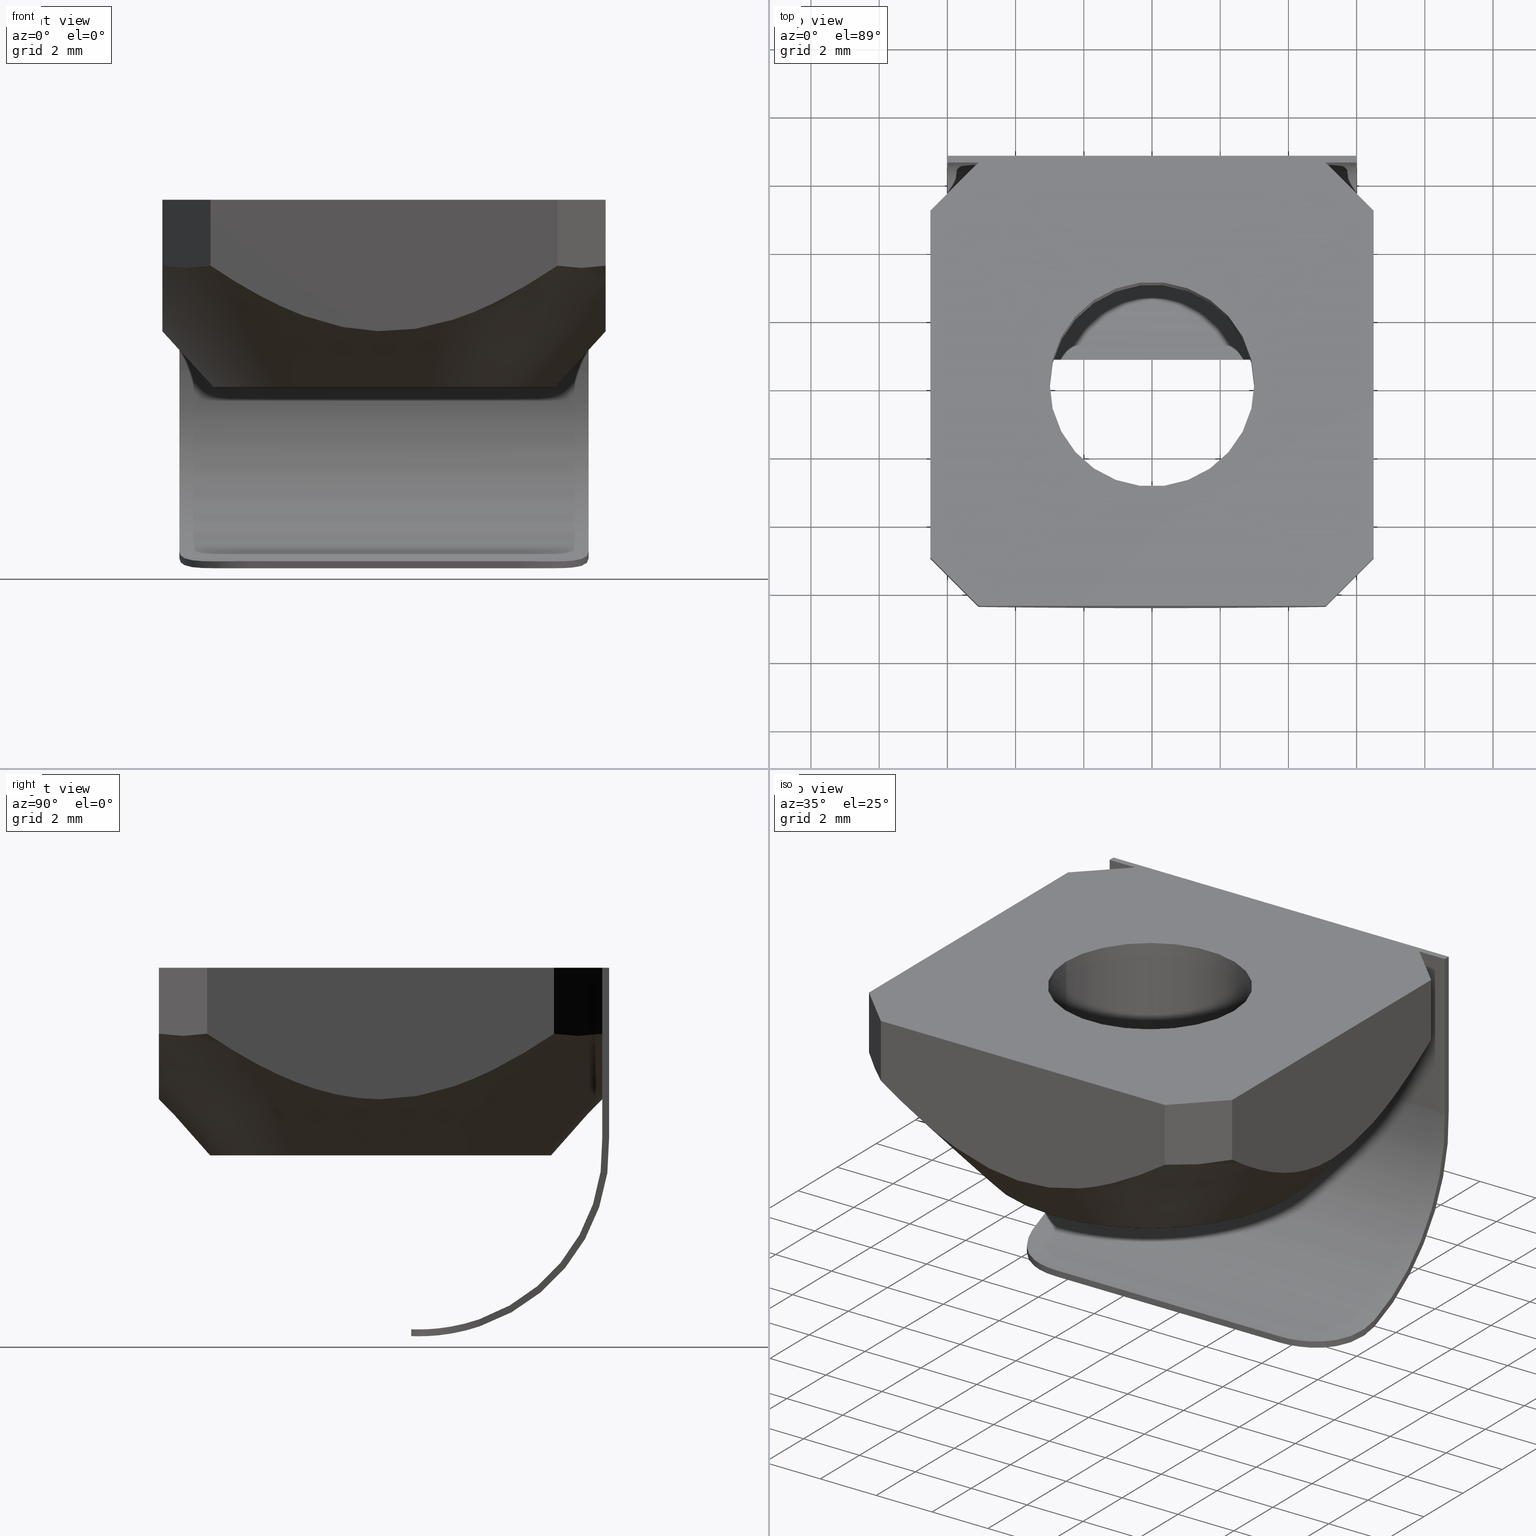
[diagram: canonical four-view strip — front | top / right | iso, engineering-drawing reading convention]
A machine part, canonical four-view strip (front | top / right | iso — engineering-drawing reading convention). The complete STEP part file that produces these views, byte-faithful:
ISO-10303-21;
HEADER;
FILE_DESCRIPTION (( 'STEP AP203' ),
    '1' );
FILE_NAME ('dado-M6-molla-3D.STEP',
    '2018-11-12T12:22:35',
    ( '' ),
    ( '' ),
    'SwSTEP 2.0',
    'SolidWorks 2018',
    '' );
FILE_SCHEMA (( 'CONFIG_CONTROL_DESIGN' ));
ENDSEC;

DATA;
#1 = CARTESIAN_POINT ( 'NONE',  ( 3.516309637117078335, 6.500000000000005329, -2.888207196025829315 ) ) ;
#2 = ADVANCED_FACE ( 'NONE', ( #875 ), #801, .T. ) ;
#3 = AXIS2_PLACEMENT_3D ( 'NONE', #665, #604, #879 ) ;
#4 = DIRECTION ( 'NONE',  ( 0.0000000000000000000, 0.0000000000000000000, 1.000000000000000000 ) ) ;
#5 = FACE_OUTER_BOUND ( 'NONE', #854, .T. ) ;
#6 = DIRECTION ( 'NONE',  ( 0.0000000000000000000, -0.0000000000000000000, 1.000000000000000000 ) ) ;
#7 = ORIENTED_EDGE ( 'NONE', *, *, #593, .T. ) ;
#8 = ADVANCED_FACE ( 'NONE', ( #187 ), #551, .F. ) ;
#9 = VECTOR ( 'NONE', #328, 1000.000000000000000 ) ;
#10 = CARTESIAN_POINT ( 'NONE',  ( 0.0000000000000000000, 6.500000000000005329, 0.0000000000000000000 ) ) ;
#11 = VERTEX_POINT ( 'NONE', #189 ) ;
#12 = ORIENTED_EDGE ( 'NONE', *, *, #671, .F. ) ;
#13 = DIRECTION ( 'NONE',  ( 0.0000000000000000000, 0.0000000000000000000, -1.000000000000000000 ) ) ;
#14 = ORIENTED_EDGE ( 'NONE', *, *, #344, .F. ) ;
#15 = EDGE_CURVE ( 'NONE', #32, #609, #606, .T. ) ;
#16 = CARTESIAN_POINT ( 'NONE',  ( -3.000000000000000000, 0.0000000000000000000, 0.0000000000000000000 ) ) ;
#17 = APPROVAL ( #794, 'NON SPECIFICATO' ) ;
#18 = COORDINATED_UNIVERSAL_TIME_OFFSET ( 1, 0, .AHEAD. ) ;
#19 = VERTEX_POINT ( 'NONE', #696 ) ;
#20 = ORIENTED_EDGE ( 'NONE', *, *, #40, .F. ) ;
#21 = CARTESIAN_POINT ( 'NONE',  ( -6.499999999966561859, 4.703623633186841069, -2.191522643361974332 ) ) ;
#22 = EDGE_CURVE ( 'NONE', #652, #477, #409, .T. ) ;
#23 = ORIENTED_EDGE ( 'NONE', *, *, #899, .F. ) ;
#24 = CARTESIAN_POINT ( 'NONE',  ( -6.499999999999999112, 0.9207822176421314175, -3.800343512463973727 ) ) ;
#25 = EDGE_CURVE ( 'NONE', #868, #652, #377, .T. ) ;
#26 = DIRECTION ( 'NONE',  ( 1.000000000000000000, 0.0000000000000000000, 1.048460935350610842E-16 ) ) ;
#27 = LINE ( 'NONE', #561, #599 ) ;
#28 = CARTESIAN_POINT ( 'NONE',  ( 3.107124692420668577, -6.500000000000003553, -3.094845548749633579 ) ) ;
#29 = VECTOR ( 'NONE', #296, 1000.000000000000000 ) ;
#30 = EDGE_LOOP ( 'NONE', ( #826, #904, #612, #683, #716 ) ) ;
#31 = VERTEX_POINT ( 'NONE', #845 ) ;
#32 = VERTEX_POINT ( 'NONE', #118 ) ;
#33 = CARTESIAN_POINT ( 'NONE',  ( -6.000000000000000888, 2.899999999998481126, -10.51649273543455898 ) ) ;
#34 = CARTESIAN_POINT ( 'NONE',  ( -4.790012113689331663, 1.055612524213420444, -10.80477249284254349 ) ) ;
#35 = AXIS2_PLACEMENT_3D ( 'NONE', #501, #861, #275 ) ;
#36 = CARTESIAN_POINT ( 'NONE',  ( -5.977072666457209138, 2.548567786748666464, -10.41758744281031213 ) ) ;
#37 = CARTESIAN_POINT ( 'NONE',  ( -4.163176101150498631, 0.8999999999984806820, -10.80000000000000426 ) ) ;
#38 = CARTESIAN_POINT ( 'NONE',  ( 0.0000000000000000000, 0.8999999999984790167, -10.60000000000000142 ) ) ;
#39 = CARTESIAN_POINT ( 'NONE',  ( 2.258238322193993675, -6.500000000000004441, -3.449905772485376332 ) ) ;
#40 = EDGE_CURVE ( 'NONE', #440, #387, #499, .T. ) ;
#41 = EDGE_LOOP ( 'NONE', ( #779, #756, #704, #235 ) ) ;
#42 = CARTESIAN_POINT ( 'NONE',  ( -6.499999999999996447, -1.815600839914668585, -3.598271834393967250 ) ) ;
#43 = EDGE_LOOP ( 'NONE', ( #727, #768, #654, #140, #345, #877, #168, #917 ) ) ;
#44 = ORIENTED_EDGE ( 'NONE', *, *, #644, .F. ) ;
#45 = DIRECTION ( 'NONE',  ( -1.000000000000000000, 0.0000000000000000000, 0.0000000000000000000 ) ) ;
#46 = CARTESIAN_POINT ( 'NONE',  ( 6.000000000000000888, 2.899999999998480238, -10.30533168883727413 ) ) ;
#47 = CARTESIAN_POINT ( 'NONE',  ( -6.500000000000000000, -3.516244482561148299, -2.888242014019203996 ) ) ;
#48 = CARTESIAN_POINT ( 'NONE',  ( -3.000000000000000000, 0.0000000000000000000, 0.0000000000000000000 ) ) ;
#49 = B_SPLINE_CURVE_WITH_KNOTS ( 'NONE', 3,
 ( #204, #632, #128, #510, #567, #932, #642, #505, #274, #705 ),
 .UNSPECIFIED., .F., .F.,
 ( 4, 2, 2, 2, 4 ),
 ( 8.673617379884035472E-19, 0.0005477296467055852965, 0.001095459293411169726, 0.001643188940116754263, 0.002190918586822338584 ),
 .UNSPECIFIED. ) ;
#50 = FACE_OUTER_BOUND ( 'NONE', #842, .T. ) ;
#51 = ORIENTED_EDGE ( 'NONE', *, *, #653, .T. ) ;
#52 = LINE ( 'NONE', #340, #9 ) ;
#53 = ORIENTED_EDGE ( 'NONE', *, *, #415, .T. ) ;
#54 = ORIENTED_EDGE ( 'NONE', *, *, #680, .T. ) ;
#55 = CARTESIAN_POINT ( 'NONE',  ( 6.000000000000000888, 6.700000000000003730, 0.0000000000000000000 ) ) ;
#56 = DIRECTION ( 'NONE',  ( -1.000000000000000000, -0.0000000000000000000, 0.0000000000000000000 ) ) ;
#57 = ORIENTED_EDGE ( 'NONE', *, *, #709, .T. ) ;
#58 = EDGE_CURVE ( 'NONE', #832, #563, #242, .T. ) ;
#59 = PLANE ( 'NONE',  #746 ) ;
#60 = PLANE ( 'NONE',  #761 ) ;
#61 = CARTESIAN_POINT ( 'NONE',  ( -8.272713925181710337, 2.747838738850358616E-15, -1.911934207335163727 ) ) ;
#62 = CYLINDRICAL_SURFACE ( 'NONE', #408, 5.574159195229043462 ) ;
#63 = CALENDAR_DATE ( 2018, 12, 11 ) ;
#64 = CARTESIAN_POINT ( 'NONE',  ( -6.500000000012470025, 5.085786437677112026, -1.933334202242378286 ) ) ;
#65 = CARTESIAN_POINT ( 'NONE',  ( 3.107124630055570602, 6.500000000000005329, -3.094845577961468308 ) ) ;
#66 = CC_DESIGN_APPROVAL ( #17, ( #867 ) ) ;
#67 = VECTOR ( 'NONE', #276, 1000.000000000000000 ) ;
#68 = ORIENTED_EDGE ( 'NONE', *, *, #603, .F. ) ;
#69 = CARTESIAN_POINT ( 'NONE',  ( 6.000000000000000888, 1.130613297613439983, -5.230613297613498247 ) ) ;
#70 = ORIENTED_EDGE ( 'NONE', *, *, #236, .T. ) ;
#71 = CARTESIAN_POINT ( 'NONE',  ( -4.000000000000000888, 2.899999999998481126, -8.605752313873237469 ) ) ;
#72 = ADVANCED_FACE ( 'NONE', ( #386 ), #770, .T. ) ;
#73 = DIRECTION ( 'NONE',  ( -0.0000000000000000000, -0.0000000000000000000, 1.000000000000000000 ) ) ;
#74 = CARTESIAN_POINT ( 'NONE',  ( 4.314592139161903539, 6.500000000000005329, -2.436609138634550753 ) ) ;
#75 = DIRECTION ( 'NONE',  ( 0.0000000000000000000, -1.000000000000000000, 0.0000000000000000000 ) ) ;
#76 = ADVANCED_FACE ( 'NONE', ( #420 ), #816, .F. ) ;
#77 = LINE ( 'NONE', #515, #503 ) ;
#78 = EDGE_CURVE ( 'NONE', #563, #832, #368, .T. ) ;
#79 = VECTOR ( 'NONE', #202, 1000.000000000000000 ) ;
#80 = FACE_OUTER_BOUND ( 'NONE', #273, .T. ) ;
#81 = VERTEX_POINT ( 'NONE', #400 ) ;
#82 = DIRECTION ( 'NONE',  ( 1.000000000000000000, 0.0000000000000000000, -0.0000000000000000000 ) ) ;
#83 = ORIENTED_EDGE ( 'NONE', *, *, #538, .F. ) ;
#84 = CARTESIAN_POINT ( 'NONE',  ( -4.932346876126580071, 1.130613297613439983, -10.80477249284254171 ) ) ;
#85 = DIRECTION ( 'NONE',  ( -1.112060755793410790E-16, 1.112060755793410790E-16, 1.000000000000000000 ) ) ;
#86 = CARTESIAN_POINT ( 'NONE',  ( -6.500000000000000888, -5.085786437626906853, 0.0000000000000000000 ) ) ;
#87 = AXIS2_PLACEMENT_3D ( 'NONE', #353, #710, #190 ) ;
#88 = PLANE ( 'NONE',  #3 ) ;
#89 = CARTESIAN_POINT ( 'NONE',  ( 5.085786390127794654, 6.500000000000004441, -1.933334234377364291 ) ) ;
#90 = VECTOR ( 'NONE', #56, 1000.000000000000000 ) ;
#91 = CARTESIAN_POINT ( 'NONE',  ( -6.499999999999999112, 6.591949000000000730E-16, 0.0000000000000000000 ) ) ;
#92 = ORIENTED_EDGE ( 'NONE', *, *, #93, .T. ) ;
#93 = EDGE_CURVE ( 'NONE', #31, #736, #922, .T. ) ;
#94 = ORIENTED_EDGE ( 'NONE', *, *, #844, .F. ) ;
#95 = ORIENTED_EDGE ( 'NONE', *, *, #58, .F. ) ;
#96 = ORIENTED_EDGE ( 'NONE', *, *, #543, .F. ) ;
#97 = DIRECTION ( 'NONE',  ( -0.7071067811865475727, 0.7071067811865475727, 0.0000000000000000000 ) ) ;
#98 = DIRECTION ( 'NONE',  ( 0.0000000000000000000, 1.000000000000000000, 0.0000000000000000000 ) ) ;
#99 = CARTESIAN_POINT ( 'NONE',  ( -6.500000000000000000, 1.815724347486218138, -3.598234520951652637 ) ) ;
#100 = COORDINATED_UNIVERSAL_TIME_OFFSET ( 1, 0, .AHEAD. ) ;
#101 = CIRCLE ( 'NONE', #797, 5.374336801206438530 ) ;
#102 = ORIENTED_EDGE ( 'NONE', *, *, #218, .T. ) ;
#103 = CARTESIAN_POINT ( 'NONE',  ( -5.085786437677105809, -6.500000000012473578, -1.933334202242374511 ) ) ;
#104 = ORIENTED_EDGE ( 'NONE', *, *, #169, .T. ) ;
#105 = AXIS2_PLACEMENT_3D ( 'NONE', #748, #98, #829 ) ;
#106 = VERTEX_POINT ( 'NONE', #862 ) ;
#107 = CARTESIAN_POINT ( 'NONE',  ( -6.499999999999999112, 5.085786437626910406, 0.0000000000000000000 ) ) ;
#108 = CARTESIAN_POINT ( 'NONE',  ( -6.000000000000000888, 2.899999999998480238, -10.30533168883727413 ) ) ;
#109 = EDGE_CURVE ( 'NONE', #19, #804, #298, .T. ) ;
#110 = LINE ( 'NONE', #833, #176 ) ;
#111 = DIRECTION ( 'NONE',  ( -1.000000000000000000, 0.0000000000000000000, 0.0000000000000000000 ) ) ;
#112 = FACE_OUTER_BOUND ( 'NONE', #43, .T. ) ;
#113 = CARTESIAN_POINT ( 'NONE',  ( 6.500000000012471801, 5.085786437614437716, -1.933334202284715309 ) ) ;
#114 = PERSON_AND_ORGANIZATION ( #745, #583 ) ;
#115 = EDGE_LOOP ( 'NONE', ( #94, #397, #104, #234, #893, #946 ) ) ;
#116 = VERTEX_POINT ( 'NONE', #279 ) ;
#117 = ORIENTED_EDGE ( 'NONE', *, *, #294, .F. ) ;
#118 = CARTESIAN_POINT ( 'NONE',  ( 4.000000000000000888, 0.8999999999984801269, -10.60000000000000142 ) ) ;
#119 = CARTESIAN_POINT ( 'NONE',  ( 6.500000000000000888, -1.815724347486215251, -3.598234520951646864 ) ) ;
#120 = CC_DESIGN_DATE_AND_TIME_ASSIGNMENT ( #495, #449, ( #867 ) ) ;
#121 = DIRECTION ( 'NONE',  ( 0.0000000000000000000, 0.0000000000000000000, -1.000000000000000000 ) ) ;
#122 = CARTESIAN_POINT ( 'NONE',  ( -5.085786437626904188, 6.500000000000005329, 0.0000000000000000000 ) ) ;
#123 = DIRECTION ( 'NONE',  ( 0.0000000000000000000, -0.0000000000000000000, -1.000000000000000000 ) ) ;
#124 = EDGE_CURVE ( 'NONE', #576, #399, #496, .T. ) ;
#125 = FACE_OUTER_BOUND ( 'NONE', #152, .T. ) ;
#126 = COORDINATED_UNIVERSAL_TIME_OFFSET ( 1, 0, .AHEAD. ) ;
#127 = VERTEX_POINT ( 'NONE', #55 ) ;
#128 = CARTESIAN_POINT ( 'NONE',  ( 5.977274528814847443, 2.549919818144776418, -10.62397640311077396 ) ) ;
#129 = DIRECTION ( 'NONE',  ( 0.0000000000000000000, 0.0000000000000000000, -1.000000000000000000 ) ) ;
#130 = EDGE_CURVE ( 'NONE', #868, #508, #221, .T. ) ;
#131 = CARTESIAN_POINT ( 'NONE',  ( -5.999999999999999112, 2.725074656816639074, -10.36632237881749852 ) ) ;
#132 = PLANE ( 'NONE',  #206 ) ;
#133 = DIRECTION ( 'NONE',  ( 0.0000000000000000000, 0.0000000000000000000, -1.000000000000000000 ) ) ;
#134 = CARTESIAN_POINT ( 'NONE',  ( 5.812800071509374611, 2.035856289621012394, -10.53051110214576269 ) ) ;
#135 = B_SPLINE_CURVE_WITH_KNOTS ( 'NONE', 3,
 ( #860, #346, #780, #920, #432, #359 ),
 .UNSPECIFIED., .F., .F.,
 ( 4, 2, 4 ),
 ( 0.002193337027142035645, 0.002675402661083819966, 0.003157468295025604721 ),
 .UNSPECIFIED. ) ;
#136 = DIRECTION ( 'NONE',  ( 0.0000000000000000000, 0.0000000000000000000, -1.000000000000000000 ) ) ;
#137 = CARTESIAN_POINT ( 'NONE',  ( 5.094267472847325173, 1.215934478296919030, -10.60495009881993589 ) ) ;
#138 = AXIS2_PLACEMENT_3D ( 'NONE', #936, #75, #871 ) ;
#139 = APPROVAL_DATE_TIME ( #939, #207 ) ;
#140 = ORIENTED_EDGE ( 'NONE', *, *, #910, .T. ) ;
#141 = DIRECTION ( 'NONE',  ( 0.6738935147379919721, 8.216221638422233690E-17, 0.7388284853699643717 ) ) ;
#142 = CARTESIAN_POINT ( 'NONE',  ( 6.500000000000000888, 2.268358371881253341E-15, -3.855463141347035716 ) ) ;
#143 = ORIENTED_EDGE ( 'NONE', *, *, #629, .T. ) ;
#144 = EDGE_CURVE ( 'NONE', #316, #32, #135, .T. ) ;
#145 = PLANE ( 'NONE',  #244 ) ;
#146 = DIRECTION ( 'NONE',  ( 0.0000000000000000000, 0.0000000000000000000, -1.000000000000000000 ) ) ;
#147 = CARTESIAN_POINT ( 'NONE',  ( 4.703623280297410503, 6.500000000000005329, -2.191522878798116025 ) ) ;
#148 = ADVANCED_FACE ( 'NONE', ( #659 ), #59, .T. ) ;
#149 = VECTOR ( 'NONE', #943, 1000.000000000000114 ) ;
#150 = DIRECTION ( 'NONE',  ( -0.0000000000000000000, -0.0000000000000000000, -1.000000000000000000 ) ) ;
#151 = DIRECTION ( 'NONE',  ( 0.0000000000000000000, -0.0000000000000000000, -1.000000000000000000 ) ) ;
#152 = EDGE_LOOP ( 'NONE', ( #68, #588, #573, #518 ) ) ;
#153 = APPLICATION_CONTEXT ( 'configuration controlled 3d designs of mechanical parts and assemblies' ) ;
#154 = AXIS2_PLACEMENT_3D ( 'NONE', #392, #167, #478 ) ;
#155 = DIRECTION ( 'NONE',  ( -1.112060755793410790E-16, 1.112060755793410790E-16, 1.000000000000000000 ) ) ;
#156 = ADVANCED_FACE ( 'NONE', ( #255 ), #725, .F. ) ;
#157 = CARTESIAN_POINT ( 'NONE',  ( 4.000000000000000888, 2.899999999998481126, -8.605752313873237469 ) ) ;
#158 = DIRECTION ( 'NONE',  ( 0.7071067811865474617, -0.7071067811865474617, 0.0000000000000000000 ) ) ;
#159 = VECTOR ( 'NONE', #452, 1000.000000000000000 ) ;
#160 = CALENDAR_DATE ( 2018, 12, 11 ) ;
#161 = VERTEX_POINT ( 'NONE', #428 ) ;
#162 = CARTESIAN_POINT ( 'NONE',  ( 4.932346876126580071, 1.130613297613440205, -10.80477249284254171 ) ) ;
#163 = CARTESIAN_POINT ( 'NONE',  ( -6.000000000000000888, 6.500000000000005329, -4.999999999999998224 ) ) ;
#164 = DIRECTION ( 'NONE',  ( -1.000000000000000000, -0.0000000000000000000, 0.0000000000000000000 ) ) ;
#165 = CIRCLE ( 'NONE', #686, 5.374336801206438530 ) ;
#166 = PERSON_AND_ORGANIZATION ( #745, #583 ) ;
#167 = DIRECTION ( 'NONE',  ( -1.112060755793410790E-16, 1.112060755793410790E-16, 1.000000000000000000 ) ) ;
#168 = ORIENTED_EDGE ( 'NONE', *, *, #844, .T. ) ;
#169 = EDGE_CURVE ( 'NONE', #541, #630, #924, .T. ) ;
#170 = CARTESIAN_POINT ( 'NONE',  ( -6.499999999999999112, 1.564844549028617558E-15, -3.855463141347041045 ) ) ;
#171 = DIRECTION ( 'NONE',  ( -1.112060755793410790E-16, 1.112060755793410790E-16, 1.000000000000000000 ) ) ;
#172 = DIRECTION ( 'NONE',  ( -0.0000000000000000000, 0.0000000000000000000, 1.000000000000000000 ) ) ;
#173 = CARTESIAN_POINT ( 'NONE',  ( -5.085786437677105809, -6.500000000012473578, -1.933334202242374511 ) ) ;
#174 = LINE ( 'NONE', #492, #283 ) ;
#175 = FACE_OUTER_BOUND ( 'NONE', #115, .T. ) ;
#176 = VECTOR ( 'NONE', #243, 1000.000000000000000 ) ;
#177 = ORIENTED_EDGE ( 'NONE', *, *, #229, .T. ) ;
#178 = DIRECTION ( 'NONE',  ( -1.000000000000000000, 0.0000000000000000000, 0.0000000000000000000 ) ) ;
#179 = CARTESIAN_POINT ( 'NONE',  ( -4.932346876126580071, 1.130613297613439983, -10.80477249284254171 ) ) ;
#180 = CARTESIAN_POINT ( 'NONE',  ( 0.4653350873336495885, -6.500000000000003553, -3.855445476124735649 ) ) ;
#181 = DIRECTION ( 'NONE',  ( -1.000000000000000000, -0.0000000000000000000, -0.0000000000000000000 ) ) ;
#182 = CARTESIAN_POINT ( 'NONE',  ( 6.500000000000000888, 2.268358371881253341E-15, -3.855463141347035716 ) ) ;
#183 = EDGE_CURVE ( 'NONE', #508, #477, #771, .T. ) ;
#184 = CARTESIAN_POINT ( 'NONE',  ( -6.499999999999999112, -0.9206392684394899550, -3.800366371403174792 ) ) ;
#185 = CIRCLE ( 'NONE', #350, 5.000000003148241667 ) ;
#186 = CARTESIAN_POINT ( 'NONE',  ( -6.028595479226078524, -5.557190958361346134, -2.021894486487704423 ) ) ;
#187 = FACE_OUTER_BOUND ( 'NONE', #695, .T. ) ;
#188 = EDGE_LOOP ( 'NONE', ( #498, #744, #371, #894 ) ) ;
#189 = CARTESIAN_POINT ( 'NONE',  ( 6.000000000000000888, 6.700000000000003730, -4.999999999999953815 ) ) ;
#190 = DIRECTION ( 'NONE',  ( 1.000000000000000000, 0.0000000000000000000, -0.0000000000000000000 ) ) ;
#191 = CLOSED_SHELL ( 'NONE', ( #76, #666, #2, #792, #802, #8, #72, #810, #363, #519, #670, #581, #592, #148, #369, #651, #301, #796, #524, #225, #156, #945, #442, #433 ) ) ;
#192 = DIRECTION ( 'NONE',  ( -0.7071067811865474617, 0.7071067811865474617, 0.0000000000000000000 ) ) ;
#193 = B_SPLINE_CURVE_WITH_KNOTS ( 'NONE', 3,
 ( #84, #223, #806, #303, #661, #536, #460, #878, #380, #528 ),
 .UNSPECIFIED., .F., .F.,
 ( 4, 2, 2, 2, 4 ),
 ( 0.0009651547313264225662, 0.001512443568808046488, 0.002059732406289670192, 0.002607021243771294114, 0.003154310081252918035 ),
 .UNSPECIFIED. ) ;
#194 = CARTESIAN_POINT ( 'NONE',  ( 6.000000000000000888, 6.500000000000005329, 0.0000000000000000000 ) ) ;
#195 = APPROVAL ( #240, 'NON SPECIFICATO' ) ;
#196 = ORIENTED_EDGE ( 'NONE', *, *, #811, .T. ) ;
#197 = VECTOR ( 'NONE', #406, 1000.000000000000000 ) ;
#198 = DIRECTION ( 'NONE',  ( 1.000000000000000000, -0.0000000000000000000, 0.0000000000000000000 ) ) ;
#199 = CARTESIAN_POINT ( 'NONE',  ( -5.085786437626905077, 6.500000000000005329, 0.0000000000000000000 ) ) ;
#200 = B_SPLINE_CURVE_WITH_KNOTS ( 'NONE', 3,
 ( #898, #37, #480, #555, #34, #179 ),
 .UNSPECIFIED., .F., .F.,
 ( 4, 2, 4 ),
 ( 0.0000000000000000000, 0.0004825773656632112831, 0.0009651547313264225662 ),
 .UNSPECIFIED. ) ;
#201 = VERTEX_POINT ( 'NONE', #194 ) ;
#202 = DIRECTION ( 'NONE',  ( -0.0000000000000000000, -0.0000000000000000000, -1.000000000000000000 ) ) ;
#203 = DIRECTION ( 'NONE',  ( -0.7071067811865474617, 0.7071067811865474617, 0.0000000000000000000 ) ) ;
#204 = CARTESIAN_POINT ( 'NONE',  ( 6.000000000000000888, 2.899999999998481126, -10.51649273543455898 ) ) ;
#205 = DIRECTION ( 'NONE',  ( -0.0000000000000000000, -0.0000000000000000000, 1.000000000000000000 ) ) ;
#206 = AXIS2_PLACEMENT_3D ( 'NONE', #568, #423, #927 ) ;
#207 = APPROVAL ( #835, 'NON SPECIFICATO' ) ;
#208 = VECTOR ( 'NONE', #554, 1000.000000000000000 ) ;
#209 = ORIENTED_EDGE ( 'NONE', *, *, #415, .F. ) ;
#210 = CARTESIAN_POINT ( 'NONE',  ( 6.500000000012471801, 5.085786437614437716, -1.933334202284715309 ) ) ;
#211 = APPLICATION_PROTOCOL_DEFINITION ( 'international standard', 'config_control_design', 1994, #362 ) ;
#212 = ORIENTED_EDGE ( 'NONE', *, *, #58, .T. ) ;
#213 = EDGE_CURVE ( 'NONE', #630, #571, #49, .T. ) ;
#214 = CARTESIAN_POINT ( 'NONE',  ( -3.000000000000000000, 0.0000000000000000000, -5.500000000000000000 ) ) ;
#215 = CARTESIAN_POINT ( 'NONE',  ( 5.085786390127794654, 6.500000000000004441, -1.933334234377364291 ) ) ;
#216 = CARTESIAN_POINT ( 'NONE',  ( 4.323209003561232500, 0.9196184697239019323, -10.80091472154443011 ) ) ;
#217 = CARTESIAN_POINT ( 'NONE',  ( -5.085786369713886756, 6.500000020414698376, -1.933334230541635002 ) ) ;
#218 = EDGE_CURVE ( 'NONE', #576, #736, #101, .T. ) ;
#219 = LINE ( 'NONE', #565, #90 ) ;
#220 = CARTESIAN_POINT ( 'NONE',  ( 5.085786437626905965, -6.500000000000003553, 0.0000000000000000000 ) ) ;
#221 = LINE ( 'NONE', #286, #79 ) ;
#222 = LINE ( 'NONE', #513, #29 ) ;
#223 = CARTESIAN_POINT ( 'NONE',  ( -5.093768095210173819, 1.215671340126286859, -10.80477249284253993 ) ) ;
#224 = ORIENTED_EDGE ( 'NONE', *, *, #341, .F. ) ;
#225 = ADVANCED_FACE ( 'NONE', ( #175 ), #577, .T. ) ;
#226 = DIRECTION ( 'NONE',  ( 0.0000000000000000000, 0.0000000000000000000, -1.000000000000000000 ) ) ;
#227 = UNCERTAINTY_MEASURE_WITH_UNIT (LENGTH_MEASURE( 1.000000000000000082E-05 ), #870, 'distance_accuracy_value', 'NONE');
#228 = CARTESIAN_POINT ( 'NONE',  ( -5.085786437626904188, 6.500000000000005329, 0.0000000000000000000 ) ) ;
#229 = EDGE_CURVE ( 'NONE', #782, #161, #624, .T. ) ;
#230 = APPROVAL_DATE_TIME ( #504, #17 ) ;
#231 = VECTOR ( 'NONE', #373, 1000.000000000000000 ) ;
#232 = ORIENTED_EDGE ( 'NONE', *, *, #709, .F. ) ;
#233 = CARTESIAN_POINT ( 'NONE',  ( -6.500000000000000888, -5.085786437626906853, 0.0000000000000000000 ) ) ;
#234 = ORIENTED_EDGE ( 'NONE', *, *, #811, .F. ) ;
#235 = ORIENTED_EDGE ( 'NONE', *, *, #15, .T. ) ;
#236 = EDGE_CURVE ( 'NONE', #782, #106, #689, .T. ) ;
#237 = DIRECTION ( 'NONE',  ( 0.7071067811865473507, -0.7071067811865477948, 0.0000000000000000000 ) ) ;
#238 = CONICAL_SURFACE ( 'NONE', #154, 8.272713925181706784, 0.7394660560889116940 ) ;
#239 = CYLINDRICAL_SURFACE ( 'NONE', #430, 2.000000000000000000 ) ;
#240 = APPROVAL_STATUS ( 'not_yet_approved' ) ;
#241 = CARTESIAN_POINT ( 'NONE',  ( -4.000000000000000888, 0.8999999999984800159, -10.60000000000000142 ) ) ;
#242 = CIRCLE ( 'NONE', #520, 3.000000000000000000 ) ;
#243 = DIRECTION ( 'NONE',  ( -0.0000000000000000000, 1.000000000000000000, 0.0000000000000000000 ) ) ;
#244 = AXIS2_PLACEMENT_3D ( 'NONE', #295, #4, #82 ) ;
#245 = ORIENTED_EDGE ( 'NONE', *, *, #421, .T. ) ;
#246 = DATE_TIME_ROLE ( 'classification_date' ) ;
#247 = EDGE_LOOP ( 'NONE', ( #212, #586 ) ) ;
#248 = CARTESIAN_POINT ( 'NONE',  ( -8.673617379884035472E-16, 1.734723475976807094E-15, -1.911934207335162839 ) ) ;
#249 = APPROVAL_ROLE ( '' ) ;
#250 = DIRECTION ( 'NONE',  ( 0.0000000000000000000, 0.0000000000000000000, -1.000000000000000000 ) ) ;
#251 = CARTESIAN_POINT ( 'NONE',  ( 3.000000000000000000, 3.673940397442059868E-16, -5.500000000000000000 ) ) ;
#252 = EDGE_CURVE ( 'NONE', #676, #440, #284, .T. ) ;
#253 = CARTESIAN_POINT ( 'NONE',  ( 0.0000000000000000000, 0.0000000000000000000, 0.0000000000000000000 ) ) ;
#254 = CARTESIAN_POINT ( 'NONE',  ( 5.085786390127794654, 6.500000000000004441, -1.933334234377364291 ) ) ;
#255 = FACE_OUTER_BOUND ( 'NONE', #931, .T. ) ;
#256 = CARTESIAN_POINT ( 'NONE',  ( 0.0000000000000000000, 1.130613297613439983, -5.230613297613498247 ) ) ;
#257 = PRODUCT_DEFINITION_SHAPE ( 'NONE', 'NONE',  #867 ) ;
#258 = CARTESIAN_POINT ( 'NONE',  ( 6.499999999966564523, -4.703623633186840181, -2.191522643361967226 ) ) ;
#259 = EDGE_LOOP ( 'NONE', ( #322, #895, #424, #143 ) ) ;
#260 = AXIS2_PLACEMENT_3D ( 'NONE', #809, #459, #13 ) ;
#261 = VERTEX_POINT ( 'NONE', #214 ) ;
#262 = EDGE_LOOP ( 'NONE', ( #886, #805, #913, #96, #639, #464 ) ) ;
#263 = DIRECTION ( 'NONE',  ( 0.0000000000000000000, 0.0000000000000000000, -1.000000000000000000 ) ) ;
#264 = CARTESIAN_POINT ( 'NONE',  ( -4.000000000000000888, 0.8999999999984800159, -10.60000000000000142 ) ) ;
#265 = CARTESIAN_POINT ( 'NONE',  ( -6.500000000000000000, -4.703607954548214565, -2.191533235839579596 ) ) ;
#266 = CARTESIAN_POINT ( 'NONE',  ( 6.000000000000000888, 2.899999999998481126, -6.411504627746475116 ) ) ;
#267 = COORDINATED_UNIVERSAL_TIME_OFFSET ( 1, 0, .AHEAD. ) ;
#268 = ORIENTED_EDGE ( 'NONE', *, *, #40, .T. ) ;
#269 = LINE ( 'NONE', #933, #754 ) ;
#270 = B_SPLINE_CURVE_WITH_KNOTS ( 'NONE', 3,
 ( #309, #737, #374, #317 ),
 .UNSPECIFIED., .F., .F.,
 ( 4, 4 ),
 ( 6.051050471646755322E-14, 0.002000000000007151873 ),
 .UNSPECIFIED. ) ;
#271 = ORIENTED_EDGE ( 'NONE', *, *, #629, .F. ) ;
#272 = EDGE_CURVE ( 'NONE', #19, #676, #494, .T. ) ;
#273 = EDGE_LOOP ( 'NONE', ( #83, #942, #51, #268, #865 ) ) ;
#274 = CARTESIAN_POINT ( 'NONE',  ( 5.094112425452929749, 1.215852778828045544, -10.80477249284254171 ) ) ;
#275 = DIRECTION ( 'NONE',  ( 0.0000000000000000000, -1.789446558218863449E-15, -1.000000000000000000 ) ) ;
#276 = DIRECTION ( 'NONE',  ( 0.0000000000000000000, 0.0000000000000000000, -1.000000000000000000 ) ) ;
#277 = DIRECTION ( 'NONE',  ( 0.0000000000000000000, 0.0000000000000000000, -1.000000000000000000 ) ) ;
#278 = B_SPLINE_CURVE_WITH_KNOTS ( 'NONE', 3,
 ( #843, #258, #760, #907, #338, #558, #119, #628, #830, #182 ),
 .UNSPECIFIED., .F., .F.,
 ( 4, 2, 2, 2, 4 ),
 ( 8.321661056377371081E-14, 0.001375070618102954174, 0.002750141236122692796, 0.004125211854142431418, 0.005500282472162170040 ),
 .UNSPECIFIED. ) ;
#279 = CARTESIAN_POINT ( 'NONE',  ( 4.000000000000000888, 0.8999999999984784615, -10.80000000000000426 ) ) ;
#280 = CARTESIAN_POINT ( 'NONE',  ( 6.500000000000000888, 0.4651318099034550402, -3.855463141347036604 ) ) ;
#281 = AXIS2_PLACEMENT_3D ( 'NONE', #497, #411, #637 ) ;
#282 = CC_DESIGN_APPROVAL ( #207, ( #747 ) ) ;
#283 = VECTOR ( 'NONE', #575, 1000.000000000000000 ) ;
#284 = LINE ( 'NONE', #61, #149 ) ;
#285 = CALENDAR_DATE ( 2018, 12, 11 ) ;
#286 = CARTESIAN_POINT ( 'NONE',  ( -5.085786437626904188, 6.500000000000005329, 0.0000000000000000000 ) ) ;
#287 = CARTESIAN_POINT ( 'NONE',  ( -4.703608129623752632, 6.499999999966569852, -2.191533114543351868 ) ) ;
#288 = EDGE_LOOP ( 'NONE', ( #818, #841, #14, #453 ) ) ;
#289 = EDGE_LOOP ( 'NONE', ( #358, #53, #617, #718, #474, #521, #819, #20 ) ) ;
#290 = VERTEX_POINT ( 'NONE', #589 ) ;
#291 = CARTESIAN_POINT ( 'NONE',  ( 6.500000000000000000, 4.703607954553438830, -2.191533235836048643 ) ) ;
#292 = CARTESIAN_POINT ( 'NONE',  ( 0.0000000000000000000, 0.0000000000000000000, -5.500000000000000000 ) ) ;
#293 = PERSON_AND_ORGANIZATION_ROLE ( 'design_owner' ) ;
#294 = EDGE_CURVE ( 'NONE', #571, #116, #569, .T. ) ;
#295 = CARTESIAN_POINT ( 'NONE',  ( 7.734518000000000462E-16, 5.551114999999999878E-16, -5.500000000000000000 ) ) ;
#296 = DIRECTION ( 'NONE',  ( -0.0000000000000000000, -0.0000000000000000000, 1.000000000000000000 ) ) ;
#297 = LINE ( 'NONE', #734, #901 ) ;
#298 = LINE ( 'NONE', #906, #560 ) ;
#299 = ORIENTED_EDGE ( 'NONE', *, *, #859, .F. ) ;
#300 = CARTESIAN_POINT ( 'NONE',  ( 0.0000000000000000000, 1.130613297613439983, -10.80477249284254171 ) ) ;
#301 = ADVANCED_FACE ( 'NONE', ( #112 ), #795, .T. ) ;
#302 = ORIENTED_EDGE ( 'NONE', *, *, #476, .T. ) ;
#303 = CARTESIAN_POINT ( 'NONE',  ( -5.510446628371886924, 1.576371582128120119, -10.78835345579395799 ) ) ;
#304 = ORIENTED_EDGE ( 'NONE', *, *, #785, .F. ) ;
#305 = AXIS2_PLACEMENT_3D ( 'NONE', #86, #815, #158 ) ;
#306 = CARTESIAN_POINT ( 'NONE',  ( 5.085786437626906853, 6.500000000000003553, 0.0000000000000000000 ) ) ;
#307 = DIRECTION ( 'NONE',  ( 0.0000000000000000000, -0.0000000000000000000, 1.000000000000000000 ) ) ;
#308 = DIRECTION ( 'NONE',  ( 1.000000000000000000, 0.0000000000000000000, 1.734723474884541410E-16 ) ) ;
#309 = CARTESIAN_POINT ( 'NONE',  ( 5.085786437677106697, -6.500000000012474466, -1.933334202242371402 ) ) ;
#310 = EDGE_CURVE ( 'NONE', #399, #541, #165, .T. ) ;
#311 = LINE ( 'NONE', #487, #197 ) ;
#312 = DIRECTION ( 'NONE',  ( 1.000000000000000000, 0.0000000000000000000, 0.0000000000000000000 ) ) ;
#313 = DIRECTION ( 'NONE',  ( -1.000000000000000000, -0.0000000000000000000, -0.0000000000000000000 ) ) ;
#314 = ORIENTED_EDGE ( 'NONE', *, *, #785, .T. ) ;
#315 = ORIENTED_EDGE ( 'NONE', *, *, #252, .T. ) ;
#316 = VERTEX_POINT ( 'NONE', #512 ) ;
#317 = CARTESIAN_POINT ( 'NONE',  ( 6.500000000012471801, -5.085786437677110250, -1.933334202242371402 ) ) ;
#318 = AXIS2_PLACEMENT_3D ( 'NONE', #784, #585, #367 ) ;
#319 = CARTESIAN_POINT ( 'NONE',  ( -6.500000000012470025, 5.085786437677112026, -1.933334202242378286 ) ) ;
#320 = VECTOR ( 'NONE', #313, 1000.000000000000000 ) ;
#321 = EDGE_CURVE ( 'NONE', #325, #929, #605, .T. ) ;
#322 = ORIENTED_EDGE ( 'NONE', *, *, #543, .T. ) ;
#323 = ORIENTED_EDGE ( 'NONE', *, *, #864, .T. ) ;
#324 = ORIENTED_EDGE ( 'NONE', *, *, #321, .F. ) ;
#325 = VERTEX_POINT ( 'NONE', #210 ) ;
#326 = PERSON_AND_ORGANIZATION_ROLE ( 'classification_officer' ) ;
#327 = CARTESIAN_POINT ( 'NONE',  ( 4.000000000000000888, 0.8999999999984800159, -10.80000000000000071 ) ) ;
#328 = DIRECTION ( 'NONE',  ( 0.0000000000000000000, 0.0000000000000000000, -1.000000000000000000 ) ) ;
#329 = CARTESIAN_POINT ( 'NONE',  ( 0.0000000000000000000, 0.8999999999984770183, -10.80000000000000426 ) ) ;
#330 = CARTESIAN_POINT ( 'NONE',  ( -6.500000000012470913, -5.085786437677108474, -1.933334202242376954 ) ) ;
#331 = FACE_BOUND ( 'NONE', #247, .T. ) ;
#332 = CARTESIAN_POINT ( 'NONE',  ( -5.812856047702491757, 2.035632361314160921, -10.53058861599345342 ) ) ;
#333 = CARTESIAN_POINT ( 'NONE',  ( 5.085786437626906853, -6.500000000000002665, 0.0000000000000000000 ) ) ;
#334 = COORDINATED_UNIVERSAL_TIME_OFFSET ( 1, 0, .AHEAD. ) ;
#335 = CC_DESIGN_PERSON_AND_ORGANIZATION_ASSIGNMENT ( #825, #293, ( #412 ) ) ;
#336 = VERTEX_POINT ( 'NONE', #723 ) ;
#337 = DIRECTION ( 'NONE',  ( -1.000000000000000000, 0.0000000000000000000, 0.0000000000000000000 ) ) ;
#338 = CARTESIAN_POINT ( 'NONE',  ( 6.499999999999999112, -3.107104337365194535, -3.094856044108537763 ) ) ;
#339 = CARTESIAN_POINT ( 'NONE',  ( -5.245691212856876895, 1.324639526335795736, -10.60293316500146155 ) ) ;
#340 = CARTESIAN_POINT ( 'NONE',  ( -6.000000000000000888, 2.899999999998481126, -8.605752313873237469 ) ) ;
#341 = EDGE_CURVE ( 'NONE', #912, #571, #883, .T. ) ;
#342 = CARTESIAN_POINT ( 'NONE',  ( 4.932346876126580071, 1.130613297613439983, -10.60495009881993589 ) ) ;
#343 = LINE ( 'NONE', #10, #320 ) ;
#344 = EDGE_CURVE ( 'NONE', #261, #752, #469, .T. ) ;
#345 = ORIENTED_EDGE ( 'NONE', *, *, #940, .T. ) ;
#346 = CARTESIAN_POINT ( 'NONE',  ( 4.789995100470600065, 1.055603559400180913, -10.60495009881993589 ) ) ;
#347 = CARTESIAN_POINT ( 'NONE',  ( 5.246396864818168027, 1.325238033550923067, -10.60290680148265885 ) ) ;
#348 = DIRECTION ( 'NONE',  ( -1.000000000000000000, -0.0000000000000000000, -0.0000000000000000000 ) ) ;
#349 = CARTESIAN_POINT ( 'NONE',  ( 5.977416937460123592, 2.550793000473774885, -10.41696293220232761 ) ) ;
#350 = AXIS2_PLACEMENT_3D ( 'NONE', #667, #85, #308 ) ;
#351 = CARTESIAN_POINT ( 'NONE',  ( 0.0000000000000000000, 6.500000000000005329, -4.999999999999999112 ) ) ;
#352 = CYLINDRICAL_SURFACE ( 'NONE', #281, 5.374336801206438530 ) ;
#353 = CARTESIAN_POINT ( 'NONE',  ( 8.326673000000000714E-16, 6.591949000000000730E-16, 0.0000000000000000000 ) ) ;
#354 = VECTOR ( 'NONE', #364, 1000.000000000000000 ) ;
#355 = LINE ( 'NONE', #233, #418 ) ;
#356 = ORIENTED_EDGE ( 'NONE', *, *, #294, .T. ) ;
#357 = EDGE_CURVE ( 'NONE', #336, #387, #77, .T. ) ;
#358 = ORIENTED_EDGE ( 'NONE', *, *, #252, .F. ) ;
#359 = CARTESIAN_POINT ( 'NONE',  ( 4.000000000000000888, 0.8999999999984801269, -10.60000000000000142 ) ) ;
#360 = CARTESIAN_POINT ( 'NONE',  ( 6.500000000000000888, 0.9206392684270442439, -3.800366371404682475 ) ) ;
#361 = DIRECTION ( 'NONE',  ( 0.7071067811865475727, 0.7071067811865475727, 0.0000000000000000000 ) ) ;
#362 = APPLICATION_CONTEXT ( 'configuration controlled 3d designs of mechanical parts and assemblies' ) ;
#363 = ADVANCED_FACE ( 'NONE', ( #540 ), #445, .T. ) ;
#364 = DIRECTION ( 'NONE',  ( 0.7071067811865473507, 0.7071067811865477948, 0.0000000000000000000 ) ) ;
#365 =( NAMED_UNIT ( * ) PLANE_ANGLE_UNIT ( ) SI_UNIT ( $, .RADIAN. ) );
#366 = VECTOR ( 'NONE', #73, 1000.000000000000000 ) ;
#367 = DIRECTION ( 'NONE',  ( 1.000000000000000000, 0.0000000000000000000, 0.0000000000000000000 ) ) ;
#368 = CIRCLE ( 'NONE', #534, 3.000000000000000000 ) ;
#369 = ADVANCED_FACE ( 'NONE', ( #405, #813 ), #145, .F. ) ;
#370 = ORIENTED_EDGE ( 'NONE', *, *, #708, .F. ) ;
#371 = ORIENTED_EDGE ( 'NONE', *, *, #183, .T. ) ;
#372 = DIRECTION ( 'NONE',  ( -1.000000000000000000, -0.0000000000000000000, -0.0000000000000000000 ) ) ;
#373 = DIRECTION ( 'NONE',  ( 0.0000000000000000000, -0.0000000000000000000, -1.000000000000000000 ) ) ;
#374 = CARTESIAN_POINT ( 'NONE',  ( 6.028595479244057032, -5.557190958382852486, -2.021894486498649446 ) ) ;
#375 = CARTESIAN_POINT ( 'NONE',  ( -5.085786437626905077, -6.500000000000002665, 0.0000000000000000000 ) ) ;
#376 = FACE_OUTER_BOUND ( 'NONE', #662, .T. ) ;
#377 = LINE ( 'NONE', #122, #450 ) ;
#378 = VECTOR ( 'NONE', #921, 1000.000000000000000 ) ;
#379 = ORIENTED_EDGE ( 'NONE', *, *, #15, .F. ) ;
#380 = CARTESIAN_POINT ( 'NONE',  ( -6.000000000000002665, 2.724519302169211343, -10.57523285936601631 ) ) ;
#381 = ORIENTED_EDGE ( 'NONE', *, *, #444, .T. ) ;
#382 = AXIS2_PLACEMENT_3D ( 'NONE', #292, #205, #729 ) ;
#383 = CARTESIAN_POINT ( 'NONE',  ( -1.815581894366166571, -6.500000000000001776, -3.598278178908113745 ) ) ;
#384 = VECTOR ( 'NONE', #732, 1000.000000000000000 ) ;
#385 = CARTESIAN_POINT ( 'NONE',  ( 0.0000000000000000000, 6.700000000000003730, -4.999999999999999112 ) ) ;
#386 = FACE_OUTER_BOUND ( 'NONE', #30, .T. ) ;
#387 = VERTEX_POINT ( 'NONE', #663 ) ;
#388 = ORIENTED_EDGE ( 'NONE', *, *, #840, .F. ) ;
#389 = EDGE_LOOP ( 'NONE', ( #23, #324, #463, #425 ) ) ;
#390 = CARTESIAN_POINT ( 'NONE',  ( -5.000000003148242556, 2.347935450215647433E-15, -5.500000002871544780 ) ) ;
#391 = CARTESIAN_POINT ( 'NONE',  ( -4.314559355035862076, -6.500000000000002665, -2.436630007698925571 ) ) ;
#392 = CARTESIAN_POINT ( 'NONE',  ( -8.673617379884035472E-16, 1.734723475976807094E-15, -1.911934207335162839 ) ) ;
#393 = DIRECTION ( 'NONE',  ( -1.000000000000000000, 0.0000000000000000000, 0.0000000000000000000 ) ) ;
#394 = SHAPE_DEFINITION_REPRESENTATION ( #257, #772 ) ;
#395 = VECTOR ( 'NONE', #164, 1000.000000000000000 ) ;
#396 = CC_DESIGN_APPROVAL ( #195, ( #514 ) ) ;
#397 = ORIENTED_EDGE ( 'NONE', *, *, #310, .T. ) ;
#398 = DESIGN_CONTEXT ( 'detailed design', #362, 'design' ) ;
#399 = VERTEX_POINT ( 'NONE', #874 ) ;
#400 = CARTESIAN_POINT ( 'NONE',  ( -6.000000000000000888, 6.700000000000003730, -4.999999999999953815 ) ) ;
#401 = DIRECTION ( 'NONE',  ( -0.0000000000000000000, -0.0000000000000000000, 1.000000000000000000 ) ) ;
#402 = EDGE_CURVE ( 'NONE', #535, #290, #712, .T. ) ;
#403 = CARTESIAN_POINT ( 'NONE',  ( 0.0000000000000000000, 0.0000000000000000000, 0.0000000000000000000 ) ) ;
#404 = CARTESIAN_POINT ( 'NONE',  ( -4.932346876126580071, 1.130613297613440205, -10.60495009881993589 ) ) ;
#405 = FACE_BOUND ( 'NONE', #587, .T. ) ;
#406 = DIRECTION ( 'NONE',  ( -0.0000000000000000000, -1.000000000000000000, -0.0000000000000000000 ) ) ;
#407 = PERSON_AND_ORGANIZATION ( #745, #583 ) ;
#408 = AXIS2_PLACEMENT_3D ( 'NONE', #668, #532, #226 ) ;
#409 = LINE ( 'NONE', #557, #208 ) ;
#410 = ORIENTED_EDGE ( 'NONE', *, *, #144, .F. ) ;
#411 = DIRECTION ( 'NONE',  ( 1.000000000000000000, 0.0000000000000000000, 0.0000000000000000000 ) ) ;
#412 = PRODUCT ( 'dado-M6-molla-3D', 'dado-M6-molla-3D', '', ( #578 ) ) ;
#413 = DIRECTION ( 'NONE',  ( 1.000000000000000000, -0.0000000000000000000, 0.0000000000000000000 ) ) ;
#414 = CARTESIAN_POINT ( 'NONE',  ( -4.163176474879704436, 0.8999999999984807930, -10.59999999999999787 ) ) ;
#415 = EDGE_CURVE ( 'NONE', #676, #19, #185, .T. ) ;
#416 = CARTESIAN_POINT ( 'NONE',  ( -4.322998016230103602, 0.9196750321729805222, -10.60094834147908216 ) ) ;
#417 = B_SPLINE_CURVE_WITH_KNOTS ( 'NONE', 3,
 ( #319, #21, #823, #743, #471, #610, #99, #24, #539, #170 ),
 .UNSPECIFIED., .F., .F.,
 ( 4, 2, 2, 2, 4 ),
 ( 8.321467144627602380E-14, 0.001375070618102952223, 0.002750141236122689761, 0.004125211854142427081, 0.005500282472162164836 ),
 .UNSPECIFIED. ) ;
#418 = VECTOR ( 'NONE', #237, 1000.000000000000000 ) ;
#419 = EDGE_CURVE ( 'NONE', #563, #752, #890, .T. ) ;
#420 = FACE_OUTER_BOUND ( 'NONE', #288, .T. ) ;
#421 = EDGE_CURVE ( 'NONE', #675, #81, #622, .T. ) ;
#422 = VECTOR ( 'NONE', #277, 1000.000000000000000 ) ;
#423 = DIRECTION ( 'NONE',  ( 0.7071067811865475727, -0.7071067811865475727, 0.0000000000000000000 ) ) ;
#424 = ORIENTED_EDGE ( 'NONE', *, *, #526, .T. ) ;
#425 = ORIENTED_EDGE ( 'NONE', *, *, #402, .T. ) ;
#426 = DIRECTION ( 'NONE',  ( 1.000000000000000000, 0.0000000000000000000, 0.0000000000000000000 ) ) ;
#427 = CARTESIAN_POINT ( 'NONE',  ( -4.932346876126580071, 1.130613297613440205, -10.60495009881993589 ) ) ;
#428 = CARTESIAN_POINT ( 'NONE',  ( 5.085786437677106697, -6.500000000012474466, -1.933334202242371402 ) ) ;
#429 = CARTESIAN_POINT ( 'NONE',  ( -3.107021169950536343, 6.500000000000005329, -3.094896641255540093 ) ) ;
#430 = AXIS2_PLACEMENT_3D ( 'NONE', #71, #146, #650 ) ;
#431 = PRODUCT_RELATED_PRODUCT_CATEGORY ( 'detail', '', ( #412 ) ) ;
#432 = CARTESIAN_POINT ( 'NONE',  ( 4.162940996171634822, 0.8999999999984807930, -10.59999999999999964 ) ) ;
#433 = ADVANCED_FACE ( 'NONE', ( #434 ), #517, .T. ) ;
#434 = FACE_OUTER_BOUND ( 'NONE', #703, .T. ) ;
#435 = DATE_AND_TIME ( #531, #764 ) ;
#436 = ORIENTED_EDGE ( 'NONE', *, *, #476, .F. ) ;
#437 = VERTEX_POINT ( 'NONE', #885 ) ;
#438 = DIRECTION ( 'NONE',  ( 1.000000000000000000, 0.0000000000000000000, 1.734723474884541410E-16 ) ) ;
#439 = CARTESIAN_POINT ( 'NONE',  ( 0.9208216613374820003, 6.500000000000005329, -3.800336668033398091 ) ) ;
#440 = VERTEX_POINT ( 'NONE', #461 ) ;
#441 = ORIENTED_EDGE ( 'NONE', *, *, #493, .F. ) ;
#442 = ADVANCED_FACE ( 'NONE', ( #938 ), #88, .T. ) ;
#443 = CARTESIAN_POINT ( 'NONE',  ( -0.9205997629207802735, 6.500000000000005329, -3.800373223944549128 ) ) ;
#444 = EDGE_CURVE ( 'NONE', #832, #261, #634, .T. ) ;
#445 = PLANE ( 'NONE',  #547 ) ;
#446 = CARTESIAN_POINT ( 'NONE',  ( -6.000000000000000888, 6.500000000000005329, -4.999999999999999112 ) ) ;
#447 = PERSON_AND_ORGANIZATION ( #745, #583 ) ;
#448 = DIRECTION ( 'NONE',  ( 1.000000000000000000, 0.0000000000000000000, 0.0000000000000000000 ) ) ;
#449 = DATE_TIME_ROLE ( 'creation_date' ) ;
#450 = VECTOR ( 'NONE', #687, 1000.000000000000114 ) ;
#451 = VECTOR ( 'NONE', #372, 1000.000000000000000 ) ;
#452 = DIRECTION ( 'NONE',  ( 0.0000000000000000000, -1.000000000000000000, -0.0000000000000000000 ) ) ;
#453 = ORIENTED_EDGE ( 'NONE', *, *, #444, .F. ) ;
#454 = VERTEX_POINT ( 'NONE', #375 ) ;
#455 = AXIS2_PLACEMENT_3D ( 'NONE', #926, #773, #136 ) ;
#456 = CARTESIAN_POINT ( 'NONE',  ( 6.500000000000000888, 5.085786437626907741, 0.0000000000000000000 ) ) ;
#457 = EDGE_LOOP ( 'NONE', ( #224, #302, #245, #271, #196, #776 ) ) ;
#458 = CARTESIAN_POINT ( 'NONE',  ( -6.500000000012470025, 5.085786437677112026, -1.933334202242378286 ) ) ;
#459 = DIRECTION ( 'NONE',  ( 1.000000000000000000, 0.0000000000000000000, 0.0000000000000000000 ) ) ;
#460 = CARTESIAN_POINT ( 'NONE',  ( -5.882309116668077209, 2.200521789344357604, -10.70402573969650994 ) ) ;
#461 = CARTESIAN_POINT ( 'NONE',  ( -6.499999999999999112, 1.564844549028617558E-15, -3.855463141347041045 ) ) ;
#462 = ORIENTED_EDGE ( 'NONE', *, *, #653, .F. ) ;
#463 = ORIENTED_EDGE ( 'NONE', *, *, #750, .T. ) ;
#464 = ORIENTED_EDGE ( 'NONE', *, *, #767, .F. ) ;
#465 = ORIENTED_EDGE ( 'NONE', *, *, #213, .F. ) ;
#466 = AXIS2_PLACEMENT_3D ( 'NONE', #620, #401, #393 ) ;
#467 = DIRECTION ( 'NONE',  ( -1.000000000000000000, -0.0000000000000000000, -0.0000000000000000000 ) ) ;
#468 = SECURITY_CLASSIFICATION_LEVEL ( 'unclassified' ) ;
#469 = CIRCLE ( 'NONE', #382, 3.000000000000000000 ) ;
#470 = DATE_AND_TIME ( #285, #658 ) ;
#471 = CARTESIAN_POINT ( 'NONE',  ( -6.500000000000000000, 3.107104337365197644, -3.094856044108543980 ) ) ;
#472 = ORIENTED_EDGE ( 'NONE', *, *, #603, .T. ) ;
#473 = VECTOR ( 'NONE', #479, 1000.000000000000000 ) ;
#474 = ORIENTED_EDGE ( 'NONE', *, *, #556, .F. ) ;
#475 = ORIENTED_EDGE ( 'NONE', *, *, #876, .T. ) ;
#476 = EDGE_CURVE ( 'NONE', #912, #675, #193, .T. ) ;
#477 = VERTEX_POINT ( 'NONE', #458 ) ;
#478 = DIRECTION ( 'NONE',  ( 1.000000000000000000, 0.0000000000000000000, 1.048460935350610842E-16 ) ) ;
#479 = DIRECTION ( 'NONE',  ( -0.0000000000000000000, -1.000000000000000000, -0.0000000000000000000 ) ) ;
#480 = CARTESIAN_POINT ( 'NONE',  ( -4.322997578019056597, 0.9196749635087260177, -10.80091427901559875 ) ) ;
#481 = CARTESIAN_POINT ( 'NONE',  ( -5.882704210853409776, 2.201612010842946887, -10.50017281169621342 ) ) ;
#482 = CARTESIAN_POINT ( 'NONE',  ( -0.9205997802961275456, -6.500000000000003553, -3.800373221879205232 ) ) ;
#483 = CIRCLE ( 'NONE', #35, 5.574159195229043462 ) ;
#484 = APPROVAL_PERSON_ORGANIZATION ( #814, #195, #681 ) ;
#485 = ORIENTED_EDGE ( 'NONE', *, *, #807, .F. ) ;
#486 = CARTESIAN_POINT ( 'NONE',  ( -5.093944414715260827, 1.215764248555826876, -10.60495009881993589 ) ) ;
#487 = CARTESIAN_POINT ( 'NONE',  ( -6.000000000000000888, 5.221683483938626580, 0.0000000000000000000 ) ) ;
#488 = EDGE_LOOP ( 'NONE', ( #598, #177, #648, #388 ) ) ;
#489 = DIRECTION ( 'NONE',  ( 0.0000000000000000000, 0.0000000000000000000, -1.000000000000000000 ) ) ;
#490 = CARTESIAN_POINT ( 'NONE',  ( 6.000000000000000888, 5.221683483938628356, 0.0000000000000000000 ) ) ;
#491 = DIRECTION ( 'NONE',  ( 0.0000000000000000000, 0.0000000000000000000, -1.000000000000000000 ) ) ;
#492 = CARTESIAN_POINT ( 'NONE',  ( 6.000000000000000888, 6.500000000000005329, -4.999999999999999112 ) ) ;
#493 = EDGE_CURVE ( 'NONE', #201, #290, #343, .T. ) ;
#494 = CIRCLE ( 'NONE', #834, 5.000000003148241667 ) ;
#495 = DATE_AND_TIME ( #63, #902 ) ;
#496 = LINE ( 'NONE', #351, #741 ) ;
#497 = CARTESIAN_POINT ( 'NONE',  ( 0.0000000000000000000, 1.130613297613439983, -5.230613297613498247 ) ) ;
#498 = ORIENTED_EDGE ( 'NONE', *, *, #25, .F. ) ;
#499 = B_SPLINE_CURVE_WITH_KNOTS ( 'NONE', 3,
 ( #909, #631, #184, #42, #762, #621, #47, #838, #265, #699 ),
 .UNSPECIFIED., .F., .F.,
 ( 4, 2, 2, 2, 4 ),
 ( 0.005500282472162164836, 0.006875464021343275639, 0.008250645570524385575, 0.009625827119705495510, 0.01100100866888660718 ),
 .UNSPECIFIED. ) ;
#500 = DIRECTION ( 'NONE',  ( 1.000000000000000000, -0.0000000000000000000, 0.0000000000000000000 ) ) ;
#501 = CARTESIAN_POINT ( 'NONE',  ( 6.000000000000000888, 1.130613297613439983, -5.230613297613498247 ) ) ;
#502 = VECTOR ( 'NONE', #172, 1000.000000000000000 ) ;
#503 = VECTOR ( 'NONE', #150, 1000.000000000000000 ) ;
#504 = DATE_AND_TIME ( #160, #850 ) ;
#505 = CARTESIAN_POINT ( 'NONE',  ( 5.246066798110304852, 1.324999525333760086, -10.80280647064873456 ) ) ;
#506 = CARTESIAN_POINT ( 'NONE',  ( 6.500000000000001776, 3.516244482516675429, -2.888242014042283312 ) ) ;
#507 = ORIENTED_EDGE ( 'NONE', *, *, #822, .T. ) ;
#508 = VERTEX_POINT ( 'NONE', #217 ) ;
#509 = ORIENTED_EDGE ( 'NONE', *, *, #698, .T. ) ;
#510 = CARTESIAN_POINT ( 'NONE',  ( 5.883433064896081532, 2.203687867343278484, -10.70339207578104634 ) ) ;
#511 = CARTESIAN_POINT ( 'NONE',  ( -0.4648848365141757255, 6.500000000000005329, -3.855480797759075706 ) ) ;
#512 = CARTESIAN_POINT ( 'NONE',  ( 4.932346876126580071, 1.130613297613439983, -10.60495009881993589 ) ) ;
#513 = CARTESIAN_POINT ( 'NONE',  ( -4.000000000000000888, 0.8999999999984810151, -8.605752313873237469 ) ) ;
#514 = PRODUCT_DEFINITION_FORMATION_WITH_SPECIFIED_SOURCE ( 'TUTTO', '', #412, .NOT_KNOWN. ) ;
#515 = CARTESIAN_POINT ( 'NONE',  ( -6.500000000000000888, -5.085786437626906853, 0.0000000000000000000 ) ) ;
#516 = CARTESIAN_POINT ( 'NONE',  ( -2.258066199381795425, 6.500000000000005329, -3.449969970471691738 ) ) ;
#517 = CYLINDRICAL_SURFACE ( 'NONE', #731, 2.000000000000000000 ) ;
#518 = ORIENTED_EDGE ( 'NONE', *, *, #864, .F. ) ;
#519 = ADVANCED_FACE ( 'NONE', ( #125 ), #600, .T. ) ;
#520 = AXIS2_PLACEMENT_3D ( 'NONE', #253, #121, #111 ) ;
#521 = ORIENTED_EDGE ( 'NONE', *, *, #680, .F. ) ;
#522 = ORIENTED_EDGE ( 'NONE', *, *, #859, .T. ) ;
#523 = CARTESIAN_POINT ( 'NONE',  ( 4.932346876126580071, 1.130613297613440205, -10.80477249284254171 ) ) ;
#524 = ADVANCED_FACE ( 'NONE', ( #673 ), #62, .T. ) ;
#525 = CARTESIAN_POINT ( 'NONE',  ( -6.000000000000000888, 6.700000000000003730, 0.0000000000000000000 ) ) ;
#526 = EDGE_CURVE ( 'NONE', #127, #11, #297, .T. ) ;
#527 = CARTESIAN_POINT ( 'NONE',  ( 4.000000000000000888, 0.8999999999984784615, -10.80000000000000426 ) ) ;
#528 = CARTESIAN_POINT ( 'NONE',  ( -6.000000000000000888, 2.899999999998481126, -10.51649273543455898 ) ) ;
#529 = LINE ( 'NONE', #700, #378 ) ;
#530 = VECTOR ( 'NONE', #6, 1000.000000000000000 ) ;
#531 = CALENDAR_DATE ( 2018, 12, 11 ) ;
#532 = DIRECTION ( 'NONE',  ( 1.000000000000000000, 0.0000000000000000000, 0.0000000000000000000 ) ) ;
#533 = ORIENTED_EDGE ( 'NONE', *, *, #25, .T. ) ;
#534 = AXIS2_PLACEMENT_3D ( 'NONE', #564, #250, #337 ) ;
#535 = VERTEX_POINT ( 'NONE', #89 ) ;
#536 = CARTESIAN_POINT ( 'NONE',  ( -5.812353534414319789, 2.034597340850837988, -10.73327535021432944 ) ) ;
#537 = PLANE ( 'NONE',  #701 ) ;
#538 = EDGE_CURVE ( 'NONE', #652, #336, #824, .T. ) ;
#539 = CARTESIAN_POINT ( 'NONE',  ( -6.500000000000000000, 0.4650942893279675916, -3.855463141347040601 ) ) ;
#540 = FACE_OUTER_BOUND ( 'NONE', #691, .T. ) ;
#541 = VERTEX_POINT ( 'NONE', #677 ) ;
#542 = ORIENTED_EDGE ( 'NONE', *, *, #910, .F. ) ;
#543 = EDGE_CURVE ( 'NONE', #81, #884, #839, .T. ) ;
#544 = CARTESIAN_POINT ( 'NONE',  ( 0.0000000000000000000, 1.130613297613439983, -10.60495009881993589 ) ) ;
#545 = ORIENTED_EDGE ( 'NONE', *, *, #722, .T. ) ;
#546 = CARTESIAN_POINT ( 'NONE',  ( 1.815743295979880711, -6.500000000000003553, -3.598228176136369694 ) ) ;
#547 = AXIS2_PLACEMENT_3D ( 'NONE', #947, #594, #151 ) ;
#548 = CC_DESIGN_PERSON_AND_ORGANIZATION_ASSIGNMENT ( #114, #821, ( #514 ) ) ;
#549 = LINE ( 'NONE', #385, #395 ) ;
#550 = PLANE ( 'NONE',  #928 ) ;
#551 = CYLINDRICAL_SURFACE ( 'NONE', #615, 3.000000000000000000 ) ;
#552 = CARTESIAN_POINT ( 'NONE',  ( 0.9208216822838624083, -6.500000000000002665, -3.800336665431245819 ) ) ;
#553 = ORIENTED_EDGE ( 'NONE', *, *, #169, .F. ) ;
#554 = DIRECTION ( 'NONE',  ( -0.0000000000000000000, -0.0000000000000000000, -1.000000000000000000 ) ) ;
#555 = CARTESIAN_POINT ( 'NONE',  ( -4.636167468394823743, 0.9970271579141681828, -10.80330589163699351 ) ) ;
#556 = EDGE_CURVE ( 'NONE', #161, #765, #270, .T. ) ;
#557 = CARTESIAN_POINT ( 'NONE',  ( -6.499999999999999112, 5.085786437626910406, 0.0000000000000000000 ) ) ;
#558 = CARTESIAN_POINT ( 'NONE',  ( 6.500000000000000000, -2.258188589613314257, -3.449924592231258913 ) ) ;
#559 = CC_DESIGN_PERSON_AND_ORGANIZATION_ASSIGNMENT ( #646, #664, ( #867 ) ) ;
#560 = VECTOR ( 'NONE', #141, 1000.000000000000114 ) ;
#561 = CARTESIAN_POINT ( 'NONE',  ( -5.085786437626905965, -6.500000000000002665, 0.0000000000000000000 ) ) ;
#562 = EDGE_LOOP ( 'NONE', ( #57, #678, #356, #7 ) ) ;
#563 = VERTEX_POINT ( 'NONE', #602 ) ;
#564 = CARTESIAN_POINT ( 'NONE',  ( 0.0000000000000000000, 0.0000000000000000000, 0.0000000000000000000 ) ) ;
#565 = CARTESIAN_POINT ( 'NONE',  ( 8.326673000000000714E-16, 6.700000000000003730, 0.0000000000000000000 ) ) ;
#566 = AXIS2_PLACEMENT_3D ( 'NONE', #256, #619, #489 ) ;
#567 = CARTESIAN_POINT ( 'NONE',  ( 5.812286394388408439, 2.034802448606280123, -10.73320332569332436 ) ) ;
#568 = CARTESIAN_POINT ( 'NONE',  ( 5.085786437626905965, -6.500000000000003553, 0.0000000000000000000 ) ) ;
#569 = B_SPLINE_CURVE_WITH_KNOTS ( 'NONE', 3,
 ( #523, #793, #656, #216, #728, #527 ),
 .UNSPECIFIED., .F., .F.,
 ( 4, 2, 4 ),
 ( 0.002190918586822338584, 0.002672955592056967984, 0.003154992597291597818 ),
 .UNSPECIFIED. ) ;
#570 = CARTESIAN_POINT ( 'NONE',  ( 5.883819793198426851, 2.204768916239237431, -10.49951476068820710 ) ) ;
#571 = VERTEX_POINT ( 'NONE', #162 ) ;
#572 = FACE_OUTER_BOUND ( 'NONE', #262, .T. ) ;
#573 = ORIENTED_EDGE ( 'NONE', *, *, #693, .T. ) ;
#574 = ORIENTED_EDGE ( 'NONE', *, *, #671, .T. ) ;
#575 = DIRECTION ( 'NONE',  ( -0.0000000000000000000, 0.0000000000000000000, 1.000000000000000000 ) ) ;
#576 = VERTEX_POINT ( 'NONE', #163 ) ;
#577 = PLANE ( 'NONE',  #740 ) ;
#578 = MECHANICAL_CONTEXT ( 'NONE', #153, 'mechanical' ) ;
#579 = DIRECTION ( 'NONE',  ( 0.0000000000000000000, 0.0000000000000000000, -1.000000000000000000 ) ) ;
#580 = CARTESIAN_POINT ( 'NONE',  ( -4.932346876126580071, 1.130613297613439983, -10.80477249284254171 ) ) ;
#581 = ADVANCED_FACE ( 'NONE', ( #925 ), #537, .T. ) ;
#582 = VECTOR ( 'NONE', #448, 1000.000000000000000 ) ;
#583 = ORGANIZATION ( 'NON SPECIFICATO', 'NON SPECIFICATO', '' ) ;
#584 = DIRECTION ( 'NONE',  ( 0.0000000000000000000, 0.0000000000000000000, -1.000000000000000000 ) ) ;
#585 = DIRECTION ( 'NONE',  ( 0.0000000000000000000, 0.0000000000000000000, 1.000000000000000000 ) ) ;
#586 = ORIENTED_EDGE ( 'NONE', *, *, #78, .T. ) ;
#587 = EDGE_LOOP ( 'NONE', ( #790, #791 ) ) ;
#588 = ORIENTED_EDGE ( 'NONE', *, *, #357, .T. ) ;
#589 = CARTESIAN_POINT ( 'NONE',  ( 5.085786437626906853, 6.500000000000003553, 0.0000000000000000000 ) ) ;
#590 = ORIENTED_EDGE ( 'NONE', *, *, #109, .F. ) ;
#591 = CARTESIAN_POINT ( 'NONE',  ( -4.314559273513300042, 6.500000000000005329, -2.436630056963112079 ) ) ;
#592 = ADVANCED_FACE ( 'NONE', ( #900 ), #887, .T. ) ;
#593 = EDGE_CURVE ( 'NONE', #116, #437, #660, .T. ) ;
#594 = DIRECTION ( 'NONE',  ( 0.0000000000000000000, -1.000000000000000000, 0.0000000000000000000 ) ) ;
#595 =( NAMED_UNIT ( * ) SI_UNIT ( $, .STERADIAN. ) SOLID_ANGLE_UNIT ( ) );
#596 = DIRECTION ( 'NONE',  ( -0.7071067811865474617, -0.7071067811865474617, 0.0000000000000000000 ) ) ;
#597 = LINE ( 'NONE', #544, #923 ) ;
#598 = ORIENTED_EDGE ( 'NONE', *, *, #236, .F. ) ;
#599 = VECTOR ( 'NONE', #123, 1000.000000000000000 ) ;
#600 = PLANE ( 'NONE',  #305 ) ;
#601 = DIRECTION ( 'NONE',  ( 0.0000000000000000000, 0.0000000000000000000, 1.000000000000000000 ) ) ;
#602 = CARTESIAN_POINT ( 'NONE',  ( 3.000000000000000000, 3.673940397442059868E-16, 0.0000000000000000000 ) ) ;
#603 = EDGE_CURVE ( 'NONE', #336, #454, #355, .T. ) ;
#604 = DIRECTION ( 'NONE',  ( 0.0000000000000000000, -1.000000000000000000, 0.0000000000000000000 ) ) ;
#605 = LINE ( 'NONE', #456, #366 ) ;
#606 = LINE ( 'NONE', #38, #941 ) ;
#607 = ORIENTED_EDGE ( 'NONE', *, *, #419, .F. ) ;
#608 =( GEOMETRIC_REPRESENTATION_CONTEXT ( 3 ) GLOBAL_UNCERTAINTY_ASSIGNED_CONTEXT ( ( #227 ) ) GLOBAL_UNIT_ASSIGNED_CONTEXT ( ( #870, #365, #595 ) ) REPRESENTATION_CONTEXT ( 'NONE', 'WORKASPACE' ) );
#609 = VERTEX_POINT ( 'NONE', #241 ) ;
#610 = CARTESIAN_POINT ( 'NONE',  ( -6.499999999999999112, 2.258188589613317809, -3.449924592231263798 ) ) ;
#611 = LINE ( 'NONE', #787, #451 ) ;
#612 = ORIENTED_EDGE ( 'NONE', *, *, #759, .T. ) ;
#613 = CONICAL_SURFACE ( 'NONE', #812, 8.272713925181706784, 0.7394660560889116940 ) ;
#614 = CARTESIAN_POINT ( 'NONE',  ( 4.703623369059488191, -6.500000000000002665, -2.191522821825990341 ) ) ;
#615 = AXIS2_PLACEMENT_3D ( 'NONE', #627, #491, #45 ) ;
#616 = ORIENTED_EDGE ( 'NONE', *, *, #124, .F. ) ;
#617 = ORIENTED_EDGE ( 'NONE', *, *, #109, .T. ) ;
#618 = CARTESIAN_POINT ( 'NONE',  ( -5.085786437677105809, -6.500000000012473578, -1.933334202242374511 ) ) ;
#619 = DIRECTION ( 'NONE',  ( 1.000000000000000000, 0.0000000000000000000, 0.0000000000000000000 ) ) ;
#620 = CARTESIAN_POINT ( 'NONE',  ( 0.0000000000000000000, 0.0000000000000000000, -5.500000000000000000 ) ) ;
#621 = CARTESIAN_POINT ( 'NONE',  ( -6.499999999999999112, -3.107041589988807306, -3.094886115520043113 ) ) ;
#622 = CIRCLE ( 'NONE', #260, 5.574159195229043462 ) ;
#623 = CARTESIAN_POINT ( 'NONE',  ( -6.000000000000000888, 6.500000000000005329, 0.0000000000000000000 ) ) ;
#624 = LINE ( 'NONE', #220, #231 ) ;
#625 = ORIENTED_EDGE ( 'NONE', *, *, #767, .T. ) ;
#626 = ORIENTED_EDGE ( 'NONE', *, *, #807, .T. ) ;
#627 = CARTESIAN_POINT ( 'NONE',  ( 0.0000000000000000000, 0.0000000000000000000, 0.0000000000000000000 ) ) ;
#628 = CARTESIAN_POINT ( 'NONE',  ( 6.500000000000000888, -0.9207822176421274207, -3.800343512463968842 ) ) ;
#629 = EDGE_CURVE ( 'NONE', #11, #81, #549, .T. ) ;
#630 = VERTEX_POINT ( 'NONE', #889 ) ;
#631 = CARTESIAN_POINT ( 'NONE',  ( -6.500000000000000000, -0.4651318099098080694, -3.855463141347041045 ) ) ;
#632 = CARTESIAN_POINT ( 'NONE',  ( 6.000000000000000888, 2.724487153612045187, -10.57524362072185475 ) ) ;
#633 = CARTESIAN_POINT ( 'NONE',  ( 6.500000000000000888, -5.085786437626907741, 0.0000000000000000000 ) ) ;
#634 = LINE ( 'NONE', #16, #739 ) ;
#635 = PERSON_AND_ORGANIZATION ( #745, #583 ) ;
#636 = FACE_OUTER_BOUND ( 'NONE', #289, .T. ) ;
#637 = DIRECTION ( 'NONE',  ( 0.0000000000000000000, 0.0000000000000000000, -1.000000000000000000 ) ) ;
#638 = ORIENTED_EDGE ( 'NONE', *, *, #888, .F. ) ;
#639 = ORIENTED_EDGE ( 'NONE', *, *, #421, .F. ) ;
#640 = B_SPLINE_CURVE_WITH_KNOTS ( 'NONE', 3,
 ( #103, #892, #391, #684, #757, #669, #383, #482, #897, #180, #552, #546, #39, #28, #749, #758, #614, #753 ),
 .UNSPECIFIED., .F., .F.,
 ( 4, 2, 2, 2, 2, 2, 2, 2, 4 ),
 ( 8.321574170978936394E-14, 0.001375126083683639398, 0.002750252167284061508, 0.004125378250884484052, 0.005500504334484906596, 0.006875630418085329140, 0.008250756501685751684, 0.009625882585286174228, 0.01100100866888659851 ),
 .UNSPECIFIED. ) ;
#641 = CARTESIAN_POINT ( 'NONE',  ( 5.511099064592408503, 1.577139458374274605, -10.58785425423563709 ) ) ;
#642 = CARTESIAN_POINT ( 'NONE',  ( 5.510560979228469769, 1.576552045381716338, -10.78833417908881032 ) ) ;
#643 = CARTESIAN_POINT ( 'NONE',  ( 6.000000000000000000, 2.725048528301102113, -10.36633148896793166 ) ) ;
#644 = EDGE_CURVE ( 'NONE', #116, #32, #775, .T. ) ;
#645 = CARTESIAN_POINT ( 'NONE',  ( 6.500000000012471801, 5.085786437614437716, -1.933334202284715309 ) ) ;
#646 = PERSON_AND_ORGANIZATION ( #745, #583 ) ;
#647 = ORIENTED_EDGE ( 'NONE', *, *, #272, .T. ) ;
#648 = ORIENTED_EDGE ( 'NONE', *, *, #556, .T. ) ;
#649 = DIRECTION ( 'NONE',  ( -1.000000000000000000, -0.0000000000000000000, -0.0000000000000000000 ) ) ;
#650 = DIRECTION ( 'NONE',  ( -1.000000000000000000, 0.0000000000000000000, 0.0000000000000000000 ) ) ;
#651 = ADVANCED_FACE ( 'NONE', ( #636 ), #238, .T. ) ;
#652 = VERTEX_POINT ( 'NONE', #751 ) ;
#653 = EDGE_CURVE ( 'NONE', #477, #440, #417, .T. ) ;
#654 = ORIENTED_EDGE ( 'NONE', *, *, #130, .F. ) ;
#655 = CC_DESIGN_PERSON_AND_ORGANIZATION_ASSIGNMENT ( #166, #326, ( #747 ) ) ;
#656 = CARTESIAN_POINT ( 'NONE',  ( 4.638489706921527400, 0.9977103376202743901, -10.80332480764774772 ) ) ;
#657 = CARTESIAN_POINT ( 'NONE',  ( 6.500000000000000888, 1.815600839890428864, -3.598271834400735170 ) ) ;
#658 = LOCAL_TIME ( 13, 22, 35.00000000000000000, #334 ) ;
#659 = FACE_OUTER_BOUND ( 'NONE', #389, .T. ) ;
#660 = LINE ( 'NONE', #329, #711 ) ;
#661 = CARTESIAN_POINT ( 'NONE',  ( -5.625019072277190446, 1.719805053856418686, -10.77582112869939657 ) ) ;
#662 = EDGE_LOOP ( 'NONE', ( #647, #315, #462, #914, #475, #831, #638, #590 ) ) ;
#663 = CARTESIAN_POINT ( 'NONE',  ( -6.500000000012470913, -5.085786437677108474, -1.933334202242376954 ) ) ;
#664 = PERSON_AND_ORGANIZATION_ROLE ( 'creator' ) ;
#665 = CARTESIAN_POINT ( 'NONE',  ( 0.0000000000000000000, 0.8999999999984800159, -10.80000000000000071 ) ) ;
#666 = ADVANCED_FACE ( 'NONE', ( #376 ), #613, .T. ) ;
#667 = CARTESIAN_POINT ( 'NONE',  ( -4.683470219463361509E-16, 1.335708759934739698E-15, -5.500000002871543892 ) ) ;
#668 = CARTESIAN_POINT ( 'NONE',  ( 0.0000000000000000000, 1.130613297613439983, -5.230613297613498247 ) ) ;
#669 = CARTESIAN_POINT ( 'NONE',  ( -2.258066242822474035, -6.500000000000002665, -3.449969955218917583 ) ) ;
#670 = ADVANCED_FACE ( 'NONE', ( #80 ), #550, .T. ) ;
#671 = EDGE_CURVE ( 'NONE', #31, #316, #597, .T. ) ;
#672 = FACE_OUTER_BOUND ( 'NONE', #488, .T. ) ;
#673 = FACE_OUTER_BOUND ( 'NONE', #457, .T. ) ;
#674 = CALENDAR_DATE ( 2018, 12, 11 ) ;
#675 = VERTEX_POINT ( 'NONE', #33 ) ;
#676 = VERTEX_POINT ( 'NONE', #390 ) ;
#677 = CARTESIAN_POINT ( 'NONE',  ( 6.000000000000000888, 2.899999999998480238, -10.30533168883727413 ) ) ;
#678 = ORIENTED_EDGE ( 'NONE', *, *, #341, .T. ) ;
#679 = DIRECTION ( 'NONE',  ( -1.000000000000000000, 0.0000000000000000000, 0.0000000000000000000 ) ) ;
#680 = EDGE_CURVE ( 'NONE', #742, #161, #640, .T. ) ;
#681 = APPROVAL_ROLE ( '' ) ;
#682 = DIRECTION ( 'NONE',  ( 1.000000000000000000, 0.0000000000000000000, 0.0000000000000000000 ) ) ;
#683 = ORIENTED_EDGE ( 'NONE', *, *, #888, .T. ) ;
#684 = CARTESIAN_POINT ( 'NONE',  ( -3.516232638360159868, -6.500000000000004441, -2.888248432145468669 ) ) ;
#685 = B_SPLINE_CURVE_WITH_KNOTS ( 'NONE', 3,
 ( #781, #287, #591, #789, #429, #516, #720, #443, #511, #724, #439, #721, #937, #65, #1, #74, #147, #215 ),
 .UNSPECIFIED., .F., .F.,
 ( 4, 2, 2, 2, 2, 2, 2, 2, 4 ),
 ( 0.0000000000000000000, 0.001375126054163217700, 0.002750252108326434099, 0.004125378162489650065, 0.005500504216652866464, 0.006875630270816082863, 0.008250756324979300130, 0.009625882379142516529, 0.01100100843330573119 ),
 .UNSPECIFIED. ) ;
#686 = AXIS2_PLACEMENT_3D ( 'NONE', #69, #649, #584 ) ;
#687 = DIRECTION ( 'NONE',  ( -0.7071067811865474617, -0.7071067811865474617, 0.0000000000000000000 ) ) ;
#688 = CARTESIAN_POINT ( 'NONE',  ( 6.028595471052790700, 5.557190966534635734, -2.021894488023176617 ) ) ;
#689 = LINE ( 'NONE', #869, #354 ) ;
#690 = APPROVAL_PERSON_ORGANIZATION ( #407, #17, #872 ) ;
#691 = EDGE_LOOP ( 'NONE', ( #485, #323, #54, #808 ) ) ;
#692 = CARTESIAN_POINT ( 'NONE',  ( -5.557190958382846269, -6.028595479244061472, -2.021894486498652999 ) ) ;
#693 = EDGE_CURVE ( 'NONE', #387, #742, #707, .T. ) ;
#694 = ORIENTED_EDGE ( 'NONE', *, *, #144, .T. ) ;
#695 = EDGE_LOOP ( 'NONE', ( #607, #95, #381, #370 ) ) ;
#696 = CARTESIAN_POINT ( 'NONE',  ( 5.000000003148240779, 1.335708759934739698E-15, -5.500000002871543003 ) ) ;
#697 = CARTESIAN_POINT ( 'NONE',  ( 6.500000000012471801, -5.085786437677110250, -1.933334202242371402 ) ) ;
#698 = EDGE_CURVE ( 'NONE', #884, #755, #311, .T. ) ;
#699 = CARTESIAN_POINT ( 'NONE',  ( -6.500000000012470913, -5.085786437677108474, -1.933334202242376954 ) ) ;
#700 = CARTESIAN_POINT ( 'NONE',  ( 8.326673000000000714E-16, -6.500000000000002665, 0.0000000000000000000 ) ) ;
#701 = AXIS2_PLACEMENT_3D ( 'NONE', #228, #97, #596 ) ;
#702 = PLANE ( 'NONE',  #87 ) ;
#703 = EDGE_LOOP ( 'NONE', ( #465, #553, #522, #694, #44, #117 ) ) ;
#704 = ORIENTED_EDGE ( 'NONE', *, *, #644, .T. ) ;
#705 = CARTESIAN_POINT ( 'NONE',  ( 4.932346876126580071, 1.130613297613440205, -10.80477249284254171 ) ) ;
#706 = CARTESIAN_POINT ( 'NONE',  ( -6.000000000000000888, 5.221683483938626580, -6.411504627746475116 ) ) ;
#707 = B_SPLINE_CURVE_WITH_KNOTS ( 'NONE', 3,
 ( #330, #186, #692, #173 ),
 .UNSPECIFIED., .F., .F.,
 ( 4, 4 ),
 ( 6.051111803072601847E-14, 0.002000000000007151873 ),
 .UNSPECIFIED. ) ;
#708 = EDGE_CURVE ( 'NONE', #752, #261, #827, .T. ) ;
#709 = EDGE_CURVE ( 'NONE', #437, #912, #200, .T. ) ;
#710 = DIRECTION ( 'NONE',  ( 0.0000000000000000000, 0.0000000000000000000, 1.000000000000000000 ) ) ;
#711 = VECTOR ( 'NONE', #467, 1000.000000000000000 ) ;
#712 = LINE ( 'NONE', #306, #530 ) ;
#713 = APPROVAL_DATE_TIME ( #470, #195 ) ;
#714 = CARTESIAN_POINT ( 'NONE',  ( 6.500000000000000888, 5.085786437626908629, 0.0000000000000000000 ) ) ;
#715 = ORIENTED_EDGE ( 'NONE', *, *, #93, .F. ) ;
#716 = ORIENTED_EDGE ( 'NONE', *, *, #321, .T. ) ;
#717 = EDGE_CURVE ( 'NONE', #127, #201, #803, .T. ) ;
#718 = ORIENTED_EDGE ( 'NONE', *, *, #759, .F. ) ;
#719 = CARTESIAN_POINT ( 'NONE',  ( -6.000000000000000888, 2.899999999998480238, -10.30533168883727413 ) ) ;
#720 = CARTESIAN_POINT ( 'NONE',  ( -1.815581859196778503, 6.500000000000005329, -3.598278188707848546 ) ) ;
#721 = CARTESIAN_POINT ( 'NONE',  ( 1.815743256735754318, 6.500000000000005329, -3.598228187127603395 ) ) ;
#722 = EDGE_CURVE ( 'NONE', #106, #929, #110, .T. ) ;
#723 = CARTESIAN_POINT ( 'NONE',  ( -6.500000000000000888, -5.085786437626906853, 0.0000000000000000000 ) ) ;
#724 = CARTESIAN_POINT ( 'NONE',  ( 0.4653350753289152153, 6.500000000000005329, -3.855445476386987647 ) ) ;
#725 = CYLINDRICAL_SURFACE ( 'NONE', #455, 5.374336801206438530 ) ;
#726 = CARTESIAN_POINT ( 'NONE',  ( 6.500000000000002665, 4.314560848977908591, -2.436628880351495496 ) ) ;
#727 = ORIENTED_EDGE ( 'NONE', *, *, #402, .F. ) ;
#728 = CARTESIAN_POINT ( 'NONE',  ( 4.162935494943496906, 0.8999999999984809040, -10.80000000000000604 ) ) ;
#729 = DIRECTION ( 'NONE',  ( -1.000000000000000000, 0.0000000000000000000, 0.0000000000000000000 ) ) ;
#730 = FACE_OUTER_BOUND ( 'NONE', #817, .T. ) ;
#731 = AXIS2_PLACEMENT_3D ( 'NONE', #157, #601, #312 ) ;
#732 = DIRECTION ( 'NONE',  ( 0.0000000000000000000, 0.0000000000000000000, -1.000000000000000000 ) ) ;
#733 = LINE ( 'NONE', #633, #422 ) ;
#734 = CARTESIAN_POINT ( 'NONE',  ( 6.000000000000000888, 6.700000000000003730, 0.0000000000000000000 ) ) ;
#735 = ORIENTED_EDGE ( 'NONE', *, *, #538, .T. ) ;
#736 = VERTEX_POINT ( 'NONE', #108 ) ;
#737 = CARTESIAN_POINT ( 'NONE',  ( 5.557190958361344357, -6.028595479226081189, -2.021894486487701315 ) ) ;
#738 = DIRECTION ( 'NONE',  ( 0.0000000000000000000, 0.0000000000000000000, 1.000000000000000000 ) ) ;
#739 = VECTOR ( 'NONE', #881, 1000.000000000000000 ) ;
#740 = AXIS2_PLACEMENT_3D ( 'NONE', #852, #198, #579 ) ;
#741 = VECTOR ( 'NONE', #426, 1000.000000000000000 ) ;
#742 = VERTEX_POINT ( 'NONE', #618 ) ;
#743 = CARTESIAN_POINT ( 'NONE',  ( -6.499999999999996447, 3.516297865762422870, -2.888213576328815702 ) ) ;
#744 = ORIENTED_EDGE ( 'NONE', *, *, #130, .T. ) ;
#745 = PERSON ( 'NON SPECIFICATO', 'NON SPECIFICATO', 'NON SPECIFICATO', ('NON SPECIFICATO'), ('NON SPECIFICATO'), ('NON SPECIFICATO') ) ;
#746 = AXIS2_PLACEMENT_3D ( 'NONE', #783, #361, #192 ) ;
#747 = SECURITY_CLASSIFICATION ( '', '', #468 ) ;
#748 = CARTESIAN_POINT ( 'NONE',  ( 0.0000000000000000000, 6.700000000000003730, 0.0000000000000000000 ) ) ;
#749 = CARTESIAN_POINT ( 'NONE',  ( 3.516309706215214437, -6.500000000000002665, -2.888207160138610785 ) ) ;
#750 = EDGE_CURVE ( 'NONE', #325, #535, #849, .T. ) ;
#751 = CARTESIAN_POINT ( 'NONE',  ( -6.499999999999999112, 5.085786437626910406, 0.0000000000000000000 ) ) ;
#752 = VERTEX_POINT ( 'NONE', #251 ) ;
#753 = CARTESIAN_POINT ( 'NONE',  ( 5.085786437677106697, -6.500000000012474466, -1.933334202242371402 ) ) ;
#754 = VECTOR ( 'NONE', #203, 1000.000000000000114 ) ;
#755 = VERTEX_POINT ( 'NONE', #623 ) ;
#756 = ORIENTED_EDGE ( 'NONE', *, *, #593, .F. ) ;
#757 = CARTESIAN_POINT ( 'NONE',  ( -3.107021229645464011, -6.500000000000003553, -3.094896613372096539 ) ) ;
#758 = CARTESIAN_POINT ( 'NONE',  ( 4.314592221427061780, -6.500000000000002665, -2.436609088893720632 ) ) ;
#759 = EDGE_CURVE ( 'NONE', #765, #804, #278, .T. ) ;
#760 = CARTESIAN_POINT ( 'NONE',  ( 6.500000000000000888, -4.314590728831698918, -2.436610215365368148 ) ) ;
#761 = AXIS2_PLACEMENT_3D ( 'NONE', #706, #500, #129 ) ;
#762 = CARTESIAN_POINT ( 'NONE',  ( -6.500000000000000000, -2.258115985512184398, -3.449951132485600258 ) ) ;
#763 = B_SPLINE_CURVE_WITH_KNOTS ( 'NONE', 3,
 ( #142, #280, #360, #657, #944, #935, #506, #726, #291, #645 ),
 .UNSPECIFIED., .F., .F.,
 ( 4, 2, 2, 2, 4 ),
 ( 0.005500282472162170040, 0.006875464021324488584, 0.008250645570486806260, 0.009625827119649123936, 0.01100100866881144161 ),
 .UNSPECIFIED. ) ;
#764 = LOCAL_TIME ( 13, 22, 35.00000000000000000, #267 ) ;
#765 = VERTEX_POINT ( 'NONE', #697 ) ;
#766 = DIRECTION ( 'NONE',  ( 0.0000000000000000000, 0.0000000000000000000, -1.000000000000000000 ) ) ;
#767 = EDGE_CURVE ( 'NONE', #736, #675, #52, .T. ) ;
#768 = ORIENTED_EDGE ( 'NONE', *, *, #876, .F. ) ;
#769 = ORIENTED_EDGE ( 'NONE', *, *, #717, .F. ) ;
#770 = PLANE ( 'NONE',  #908 ) ;
#771 = B_SPLINE_CURVE_WITH_KNOTS ( 'NONE', 3,
 ( #786, #856, #918, #64 ),
 .UNSPECIFIED., .F., .F.,
 ( 4, 4 ),
 ( 0.0000000000000000000, 0.002000000057714793490 ),
 .UNSPECIFIED. ) ;
#772 = ADVANCED_BREP_SHAPE_REPRESENTATION ( 'dado-M6-molla-3D', ( #820, #318 ), #608 ) ;
#773 = DIRECTION ( 'NONE',  ( 1.000000000000000000, 0.0000000000000000000, 0.0000000000000000000 ) ) ;
#774 = CARTESIAN_POINT ( 'NONE',  ( -6.000000000000000888, 1.130613297613439983, -5.230613297613498247 ) ) ;
#775 = LINE ( 'NONE', #327, #502 ) ;
#776 = ORIENTED_EDGE ( 'NONE', *, *, #213, .T. ) ;
#777 = VECTOR ( 'NONE', #866, 1000.000000000000000 ) ;
#778 = B_SPLINE_CURVE_WITH_KNOTS ( 'NONE', 3,
 ( #264, #414, #416, #916, #919, #427 ),
 .UNSPECIFIED., .F., .F.,
 ( 4, 2, 4 ),
 ( 0.0000000000000000000, 0.0004825782581164946494, 0.0009651565162329892988 ),
 .UNSPECIFIED. ) ;
#779 = ORIENTED_EDGE ( 'NONE', *, *, #934, .F. ) ;
#780 = CARTESIAN_POINT ( 'NONE',  ( 4.638333771829127095, 0.9976638672504216654, -10.60344725942989541 ) ) ;
#781 = CARTESIAN_POINT ( 'NONE',  ( -5.085786369713886756, 6.500000020414698376, -1.933334230541635002 ) ) ;
#782 = VERTEX_POINT ( 'NONE', #333 ) ;
#783 = CARTESIAN_POINT ( 'NONE',  ( 6.500000000000002665, 5.085786437626907741, 0.0000000000000000000 ) ) ;
#784 = CARTESIAN_POINT ( 'NONE',  ( 0.0000000000000000000, 0.0000000000000000000, 0.0000000000000000000 ) ) ;
#785 = EDGE_CURVE ( 'NONE', #609, #31, #778, .T. ) ;
#786 = CARTESIAN_POINT ( 'NONE',  ( -5.085786369713886756, 6.500000020414698376, -1.933334230541635002 ) ) ;
#787 = CARTESIAN_POINT ( 'NONE',  ( 0.0000000000000000000, 6.500000000000005329, 0.0000000000000000000 ) ) ;
#788 = CARTESIAN_POINT ( 'NONE',  ( -4.683470219463361509E-16, 1.335708759934739698E-15, -5.500000002871543892 ) ) ;
#789 = CARTESIAN_POINT ( 'NONE',  ( -3.516232571179676913, 6.500000000000005329, -2.888248467003529107 ) ) ;
#790 = ORIENTED_EDGE ( 'NONE', *, *, #344, .T. ) ;
#791 = ORIENTED_EDGE ( 'NONE', *, *, #708, .T. ) ;
#792 = ADVANCED_FACE ( 'NONE', ( #50 ), #352, .F. ) ;
#793 = CARTESIAN_POINT ( 'NONE',  ( 4.789982880647394303, 1.055597120381521759, -10.80477249284253816 ) ) ;
#794 = APPROVAL_STATUS ( 'not_yet_approved' ) ;
#795 = PLANE ( 'NONE',  #138 ) ;
#796 = ADVANCED_FACE ( 'NONE', ( #572 ), #60, .F. ) ;
#797 = AXIS2_PLACEMENT_3D ( 'NONE', #774, #348, #133 ) ;
#798 = CC_DESIGN_SECURITY_CLASSIFICATION ( #747, ( #514 ) ) ;
#799 = DIRECTION ( 'NONE',  ( -0.0000000000000000000, 0.0000000000000000000, -1.000000000000000000 ) ) ;
#800 = LINE ( 'NONE', #446, #777 ) ;
#801 = CYLINDRICAL_SURFACE ( 'NONE', #566, 5.574159195229043462 ) ;
#802 = ADVANCED_FACE ( 'NONE', ( #331, #730 ), #702, .T. ) ;
#803 = LINE ( 'NONE', #490, #473 ) ;
#804 = VERTEX_POINT ( 'NONE', #848 ) ;
#805 = ORIENTED_EDGE ( 'NONE', *, *, #940, .F. ) ;
#806 = CARTESIAN_POINT ( 'NONE',  ( -5.245356193825848834, 1.324395621909363774, -10.80283229230993136 ) ) ;
#807 = EDGE_CURVE ( 'NONE', #454, #782, #529, .T. ) ;
#808 = ORIENTED_EDGE ( 'NONE', *, *, #229, .F. ) ;
#809 = CARTESIAN_POINT ( 'NONE',  ( -6.000000000000000888, 1.130613297613439983, -5.230613297613498247 ) ) ;
#810 = ADVANCED_FACE ( 'NONE', ( #672 ), #132, .T. ) ;
#811 = EDGE_CURVE ( 'NONE', #11, #630, #483, .T. ) ;
#812 = AXIS2_PLACEMENT_3D ( 'NONE', #248, #171, #26 ) ;
#813 = FACE_OUTER_BOUND ( 'NONE', #905, .T. ) ;
#814 = PERSON_AND_ORGANIZATION ( #745, #583 ) ;
#815 = DIRECTION ( 'NONE',  ( -0.7071067811865475727, -0.7071067811865475727, 0.0000000000000000000 ) ) ;
#816 = CYLINDRICAL_SURFACE ( 'NONE', #846, 3.000000000000000000 ) ;
#817 = EDGE_LOOP ( 'NONE', ( #70, #545, #828, #441, #769, #507, #509, #542, #533, #735, #472, #626 ) ) ;
#818 = ORIENTED_EDGE ( 'NONE', *, *, #78, .F. ) ;
#819 = ORIENTED_EDGE ( 'NONE', *, *, #693, .F. ) ;
#820 = MANIFOLD_SOLID_BREP ( 'Importato1', #191 ) ;
#821 = PERSON_AND_ORGANIZATION_ROLE ( 'creator' ) ;
#822 = EDGE_CURVE ( 'NONE', #127, #884, #219, .T. ) ;
#823 = CARTESIAN_POINT ( 'NONE',  ( -6.500000000000000888, 4.314590728831701583, -2.436610215365375254 ) ) ;
#824 = LINE ( 'NONE', #91, #159 ) ;
#825 = PERSON_AND_ORGANIZATION ( #745, #583 ) ;
#826 = ORIENTED_EDGE ( 'NONE', *, *, #722, .F. ) ;
#827 = CIRCLE ( 'NONE', #466, 3.000000000000000000 ) ;
#828 = ORIENTED_EDGE ( 'NONE', *, *, #899, .T. ) ;
#829 = DIRECTION ( 'NONE',  ( 0.0000000000000000000, -0.0000000000000000000, 1.000000000000000000 ) ) ;
#830 = CARTESIAN_POINT ( 'NONE',  ( 6.500000000000002665, -0.4650942893279644830, -3.855463141347037048 ) ) ;
#831 = ORIENTED_EDGE ( 'NONE', *, *, #750, .F. ) ;
#832 = VERTEX_POINT ( 'NONE', #48 ) ;
#833 = CARTESIAN_POINT ( 'NONE',  ( 6.500000000000000888, 6.591949000000000730E-16, 0.0000000000000000000 ) ) ;
#834 = AXIS2_PLACEMENT_3D ( 'NONE', #788, #155, #438 ) ;
#835 = APPROVAL_STATUS ( 'not_yet_approved' ) ;
#836 = CARTESIAN_POINT ( 'NONE',  ( -5.625601098204628947, 1.720593567078890329, -10.57483645563561581 ) ) ;
#837 = CARTESIAN_POINT ( 'NONE',  ( 5.557190925268868043, 6.028595512358042363, -2.021894485313493472 ) ) ;
#838 = CARTESIAN_POINT ( 'NONE',  ( -6.499999999999999112, -4.314560849031610523, -2.436628880319039236 ) ) ;
#839 = LINE ( 'NONE', #525, #882 ) ;
#840 = EDGE_CURVE ( 'NONE', #106, #765, #733, .T. ) ;
#841 = ORIENTED_EDGE ( 'NONE', *, *, #419, .T. ) ;
#842 = EDGE_LOOP ( 'NONE', ( #715, #574, #299, #851, #616, #102 ) ) ;
#843 = CARTESIAN_POINT ( 'NONE',  ( 6.500000000012471801, -5.085786437677110250, -1.933334202242371402 ) ) ;
#844 = EDGE_CURVE ( 'NONE', #399, #201, #174, .T. ) ;
#845 = CARTESIAN_POINT ( 'NONE',  ( -4.932346876126580071, 1.130613297613440205, -10.60495009881993589 ) ) ;
#846 = AXIS2_PLACEMENT_3D ( 'NONE', #403, #766, #178 ) ;
#847 = CC_DESIGN_DATE_AND_TIME_ASSIGNMENT ( #435, #246, ( #747 ) ) ;
#848 = CARTESIAN_POINT ( 'NONE',  ( 6.500000000000000888, 2.268358371881253341E-15, -3.855463141347035716 ) ) ;
#849 = B_SPLINE_CURVE_WITH_KNOTS ( 'NONE', 3,
 ( #113, #688, #837, #254 ),
 .UNSPECIFIED., .F., .F.,
 ( 4, 4 ),
 ( 1.619403174964312234E-14, 0.002000000033620774175 ),
 .UNSPECIFIED. ) ;
#850 = LOCAL_TIME ( 13, 22, 35.00000000000000000, #100 ) ;
#851 = ORIENTED_EDGE ( 'NONE', *, *, #310, .F. ) ;
#852 = CARTESIAN_POINT ( 'NONE',  ( 6.000000000000000888, 5.221683483938628356, -6.411504627746475116 ) ) ;
#853 = CARTESIAN_POINT ( 'NONE',  ( -6.000000000000000888, 6.700000000000003730, 0.0000000000000000000 ) ) ;
#854 = EDGE_LOOP ( 'NONE', ( #314, #92, #625, #436, #232, #855 ) ) ;
#855 = ORIENTED_EDGE ( 'NONE', *, *, #934, .T. ) ;
#856 = CARTESIAN_POINT ( 'NONE',  ( -5.557190930952024210, 6.028595506674885307, -2.021894486381079936 ) ) ;
#857 = CARTESIAN_POINT ( 'NONE',  ( 5.627475698681124072, 1.723432406678096163, -10.57448334814733393 ) ) ;
#858 = B_SPLINE_CURVE_WITH_KNOTS ( 'NONE', 3,
 ( #46, #643, #349, #570, #134, #857, #641, #347, #137, #342 ),
 .UNSPECIFIED., .F., .F.,
 ( 4, 2, 2, 2, 4 ),
 ( 4.336808689942017736E-19, 0.0005483342567855092366, 0.001096668513571018039, 0.001645002770356526842, 0.002193337027142035645 ),
 .UNSPECIFIED. ) ;
#859 = EDGE_CURVE ( 'NONE', #541, #316, #858, .T. ) ;
#860 = CARTESIAN_POINT ( 'NONE',  ( 4.932346876126580071, 1.130613297613439983, -10.60495009881993589 ) ) ;
#861 = DIRECTION ( 'NONE',  ( -1.000000000000000000, -0.0000000000000000000, -0.0000000000000000000 ) ) ;
#862 = CARTESIAN_POINT ( 'NONE',  ( 6.500000000000000888, -5.085786437626907741, 0.0000000000000000000 ) ) ;
#863 = APPLICATION_PROTOCOL_DEFINITION ( 'international standard', 'config_control_design', 1994, #153 ) ;
#864 = EDGE_CURVE ( 'NONE', #454, #742, #27, .T. ) ;
#865 = ORIENTED_EDGE ( 'NONE', *, *, #357, .F. ) ;
#866 = DIRECTION ( 'NONE',  ( 0.0000000000000000000, -0.0000000000000000000, -1.000000000000000000 ) ) ;
#867 = PRODUCT_DEFINITION ( 'NON CONOSCIUTO', '', #514, #398 ) ;
#868 = VERTEX_POINT ( 'NONE', #199 ) ;
#869 = CARTESIAN_POINT ( 'NONE',  ( 5.085786437626905965, -6.500000000000003553, 0.0000000000000000000 ) ) ;
#870 =( LENGTH_UNIT ( ) NAMED_UNIT ( * ) SI_UNIT ( .MILLI., .METRE. ) );
#871 = DIRECTION ( 'NONE',  ( 0.0000000000000000000, -0.0000000000000000000, -1.000000000000000000 ) ) ;
#872 = APPROVAL_ROLE ( '' ) ;
#873 = APPROVAL_PERSON_ORGANIZATION ( #635, #207, #249 ) ;
#874 = CARTESIAN_POINT ( 'NONE',  ( 6.000000000000000888, 6.500000000000005329, -4.999999999999998224 ) ) ;
#875 = FACE_OUTER_BOUND ( 'NONE', #562, .T. ) ;
#876 = EDGE_CURVE ( 'NONE', #508, #535, #685, .T. ) ;
#877 = ORIENTED_EDGE ( 'NONE', *, *, #124, .T. ) ;
#878 = CARTESIAN_POINT ( 'NONE',  ( -5.976913769444508695, 2.547623317948775057, -10.62459425272414038 ) ) ;
#879 = DIRECTION ( 'NONE',  ( 0.0000000000000000000, -0.0000000000000000000, -1.000000000000000000 ) ) ;
#880 = CARTESIAN_POINT ( 'NONE',  ( 3.000000000000000000, 3.673940397442059868E-16, 0.0000000000000000000 ) ) ;
#881 = DIRECTION ( 'NONE',  ( 0.0000000000000000000, 0.0000000000000000000, -1.000000000000000000 ) ) ;
#882 = VECTOR ( 'NONE', #307, 1000.000000000000000 ) ;
#883 = LINE ( 'NONE', #300, #582 ) ;
#884 = VERTEX_POINT ( 'NONE', #853 ) ;
#885 = CARTESIAN_POINT ( 'NONE',  ( -4.000000000000000888, 0.8999999999984800159, -10.80000000000000426 ) ) ;
#886 = ORIENTED_EDGE ( 'NONE', *, *, #218, .F. ) ;
#887 = PLANE ( 'NONE',  #105 ) ;
#888 = EDGE_CURVE ( 'NONE', #804, #325, #763, .T. ) ;
#889 = CARTESIAN_POINT ( 'NONE',  ( 6.000000000000000888, 2.899999999998481126, -10.51649273543455898 ) ) ;
#890 = LINE ( 'NONE', #880, #384 ) ;
#891 = PERSON_AND_ORGANIZATION_ROLE ( 'design_supplier' ) ;
#892 = CARTESIAN_POINT ( 'NONE',  ( -4.703608218064449176, -6.499999999966565412, -2.191533057788421779 ) ) ;
#893 = ORIENTED_EDGE ( 'NONE', *, *, #526, .F. ) ;
#894 = ORIENTED_EDGE ( 'NONE', *, *, #22, .F. ) ;
#895 = ORIENTED_EDGE ( 'NONE', *, *, #822, .F. ) ;
#896 = CC_DESIGN_PERSON_AND_ORGANIZATION_ASSIGNMENT ( #447, #891, ( #514 ) ) ;
#897 = CARTESIAN_POINT ( 'NONE',  ( -0.4648848418447529274, -6.500000000000003553, -3.855480798021071465 ) ) ;
#898 = CARTESIAN_POINT ( 'NONE',  ( -4.000000000000000888, 0.8999999999984800159, -10.80000000000000426 ) ) ;
#899 = EDGE_CURVE ( 'NONE', #929, #290, #269, .T. ) ;
#900 = FACE_OUTER_BOUND ( 'NONE', #259, .T. ) ;
#901 = VECTOR ( 'NONE', #799, 1000.000000000000000 ) ;
#902 = LOCAL_TIME ( 13, 22, 35.00000000000000000, #126 ) ;
#903 = CARTESIAN_POINT ( 'NONE',  ( 6.500000000000000888, -5.085786437626907741, 0.0000000000000000000 ) ) ;
#904 = ORIENTED_EDGE ( 'NONE', *, *, #840, .T. ) ;
#905 = EDGE_LOOP ( 'NONE', ( #930, #209 ) ) ;
#906 = CARTESIAN_POINT ( 'NONE',  ( 8.272713925181706784, 1.734723475976807094E-15, -1.911934207335161950 ) ) ;
#907 = CARTESIAN_POINT ( 'NONE',  ( 6.499999999999999112, -3.516297865762419761, -2.888213576328807708 ) ) ;
#908 = AXIS2_PLACEMENT_3D ( 'NONE', #903, #413, #263 ) ;
#909 = CARTESIAN_POINT ( 'NONE',  ( -6.499999999999999112, 1.564844549028617558E-15, -3.855463141347041045 ) ) ;
#910 = EDGE_CURVE ( 'NONE', #868, #755, #611, .T. ) ;
#911 = LOCAL_TIME ( 13, 22, 35.00000000000000000, #18 ) ;
#912 = VERTEX_POINT ( 'NONE', #580 ) ;
#913 = ORIENTED_EDGE ( 'NONE', *, *, #698, .F. ) ;
#914 = ORIENTED_EDGE ( 'NONE', *, *, #183, .F. ) ;
#915 = CARTESIAN_POINT ( 'NONE',  ( -5.510968590095163044, 1.576942503321408173, -10.58787539453350490 ) ) ;
#916 = CARTESIAN_POINT ( 'NONE',  ( -4.636167955157564968, 0.9970273177162854994, -10.60342896736921858 ) ) ;
#917 = ORIENTED_EDGE ( 'NONE', *, *, #493, .T. ) ;
#918 = CARTESIAN_POINT ( 'NONE',  ( -6.028595465388295160, 5.557190972238614357, -2.021894489101665027 ) ) ;
#919 = CARTESIAN_POINT ( 'NONE',  ( -4.790012447997701095, 1.055612700371274526, -10.60495009881993589 ) ) ;
#920 = CARTESIAN_POINT ( 'NONE',  ( 4.323182713026458401, 0.9196198091721586865, -10.60094867635074323 ) ) ;
#921 = DIRECTION ( 'NONE',  ( 1.000000000000000000, 0.0000000000000000000, -0.0000000000000000000 ) ) ;
#922 = B_SPLINE_CURVE_WITH_KNOTS ( 'NONE', 3,
 ( #404, #486, #339, #915, #836, #332, #481, #36, #131, #719 ),
 .UNSPECIFIED., .F., .F.,
 ( 4, 2, 2, 2, 4 ),
 ( 0.0009651565162329892988, 0.001513045454371179108, 0.002060934392509369134, 0.002608823330647558510, 0.003156712268785747885 ),
 .UNSPECIFIED. ) ;
#923 = VECTOR ( 'NONE', #682, 1000.000000000000000 ) ;
#924 = LINE ( 'NONE', #266, #67 ) ;
#925 = FACE_OUTER_BOUND ( 'NONE', #188, .T. ) ;
#926 = CARTESIAN_POINT ( 'NONE',  ( 0.0000000000000000000, 1.130613297613439983, -5.230613297613498247 ) ) ;
#927 = DIRECTION ( 'NONE',  ( 0.7071067811865474617, 0.7071067811865474617, 0.0000000000000000000 ) ) ;
#928 = AXIS2_PLACEMENT_3D ( 'NONE', #107, #679, #738 ) ;
#929 = VERTEX_POINT ( 'NONE', #714 ) ;
#930 = ORIENTED_EDGE ( 'NONE', *, *, #272, .F. ) ;
#931 = EDGE_LOOP ( 'NONE', ( #12, #304, #379, #410 ) ) ;
#932 = CARTESIAN_POINT ( 'NONE',  ( 5.626908165101747628, 1.722664618492574240, -10.77547851431101300 ) ) ;
#933 = CARTESIAN_POINT ( 'NONE',  ( 6.500000000000002665, 5.085786437626907741, 0.0000000000000000000 ) ) ;
#934 = EDGE_CURVE ( 'NONE', #437, #609, #222, .T. ) ;
#935 = CARTESIAN_POINT ( 'NONE',  ( 6.500000000000002665, 3.107041589949054661, -3.094886115538637128 ) ) ;
#936 = CARTESIAN_POINT ( 'NONE',  ( 0.0000000000000000000, 6.500000000000005329, -4.999999999999999112 ) ) ;
#937 = CARTESIAN_POINT ( 'NONE',  ( 2.258238273969045196, 6.500000000000005329, -3.449905789529593036 ) ) ;
#938 = FACE_OUTER_BOUND ( 'NONE', #41, .T. ) ;
#939 = DATE_AND_TIME ( #674, #911 ) ;
#940 = EDGE_CURVE ( 'NONE', #755, #576, #800, .T. ) ;
#941 = VECTOR ( 'NONE', #181, 1000.000000000000000 ) ;
#942 = ORIENTED_EDGE ( 'NONE', *, *, #22, .T. ) ;
#943 = DIRECTION ( 'NONE',  ( -0.6738935147379921942, 1.646903699632265117E-16, 0.7388284853699641497 ) ) ;
#944 = CARTESIAN_POINT ( 'NONE',  ( 6.500000000000000888, 2.258115985482339383, -3.449951132496112738 ) ) ;
#945 = ADVANCED_FACE ( 'NONE', ( #5 ), #239, .T. ) ;
#946 = ORIENTED_EDGE ( 'NONE', *, *, #717, .T. ) ;
#947 = CARTESIAN_POINT ( 'NONE',  ( -5.085786437626905965, -6.500000000000002665, 0.0000000000000000000 ) ) ;
ENDSEC;
END-ISO-10303-21;
